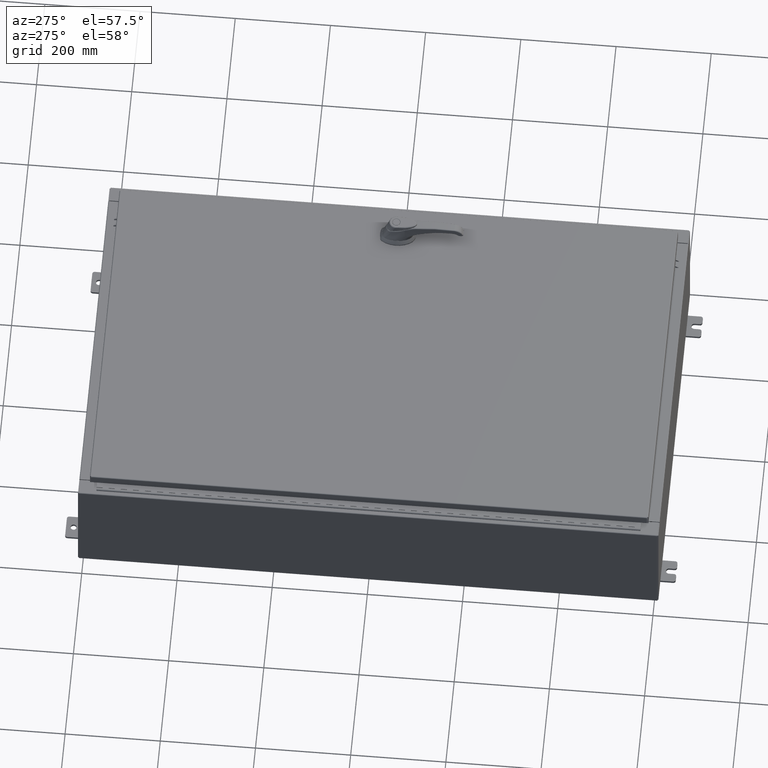
[diagram: clean part render]
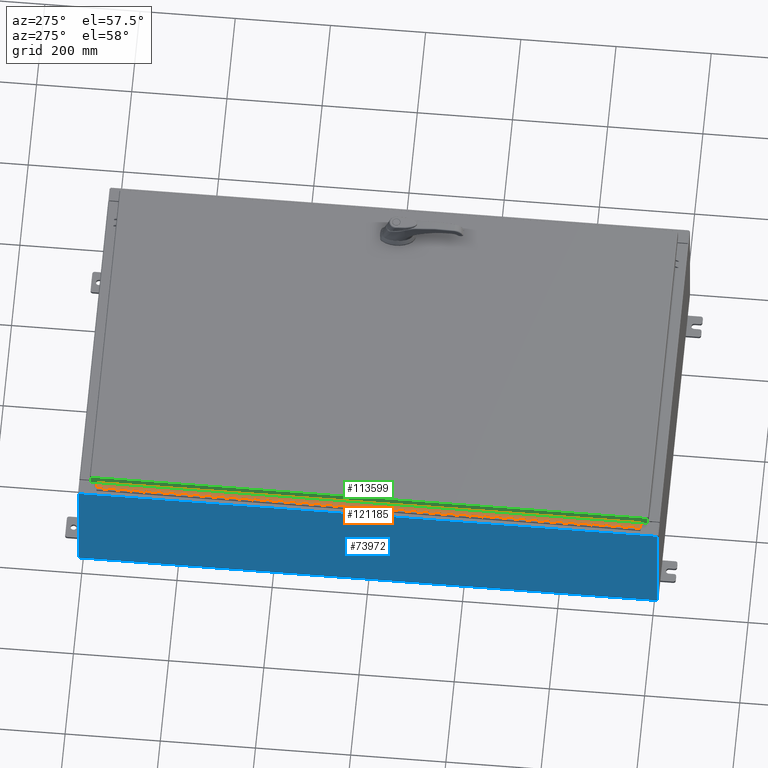
[diagram: same view with three faces highlighted in distinct colors, each labeled with its STEP entity id]
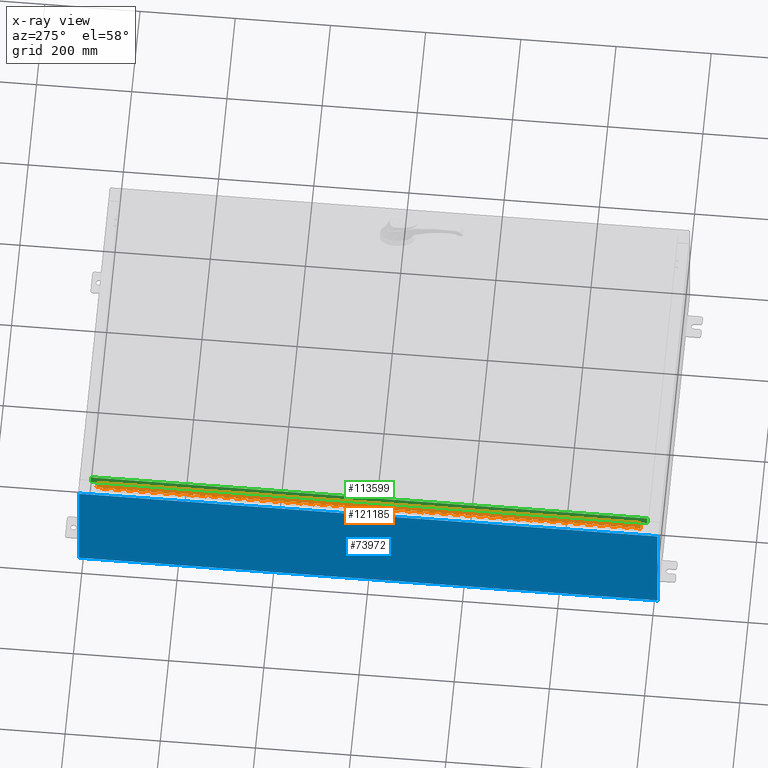
[diagram: x-ray of the same camera — body ghosted, the three highlighted faces saturated]
A machine part, auxiliary view with three faces highlighted in distinct colors.
The next image is the same camera in x-ray (body ghosted, the three faces saturated) — at least one of them is partly hidden behind the body in this view.
Their STEP definitions:

[orange] entity #121185 — the highlighted planar face has unit normal (-0, -0, 1).
#124 = CARTESIAN_POINT ( 'NONE',  ( -0.6869999999999978300, 0.6754999999999996600, -24.50000000000000000 ) ) ;
#339 = CARTESIAN_POINT ( 'NONE',  ( -0.6869999999999978300, 0.6754999999999996600, -45.00000000000000000 ) ) ;
#436 = DIRECTION ( 'NONE',  ( -3.389037039080723100E-015, -1.000000000000000000, 0.0000000000000000000 ) ) ;
#451 = EDGE_CURVE ( 'NONE', #67192, #107715, #25138, .T. ) ;
#452 = EDGE_CURVE ( 'NONE', #81519, #14521, #103904, .T. ) ;
#480 = EDGE_CURVE ( 'NONE', #79050, #2181, #15455, .T. ) ;
#830 = DIRECTION ( 'NONE',  ( 0.0000000000000000000, -0.0000000000000000000, -1.000000000000000000 ) ) ;
#990 = CARTESIAN_POINT ( 'NONE',  ( -0.6869999999999982800, 0.5504999999999997700, -21.50000000000000400 ) ) ;
#1038 = EDGE_CURVE ( 'NONE', #35937, #28986, #58678, .T. ) ;
#1095 = VERTEX_POINT ( 'NONE', #45919 ) ;
#1113 = VECTOR ( 'NONE', #57466, 39.37007874015748100 ) ;
#1271 = EDGE_CURVE ( 'NONE', #71662, #17368, #39361, .T. ) ;
#1284 = EDGE_CURVE ( 'NONE', #81627, #83655, #115033, .T. ) ;
#1350 = CARTESIAN_POINT ( 'NONE',  ( -0.6869999999999978300, 0.6754999999999996600, -45.00000000000000000 ) ) ;
#1385 = VERTEX_POINT ( 'NONE', #5290 ) ;
#1420 = VECTOR ( 'NONE', #76871, 39.37007874015748100 ) ;
#1586 = DIRECTION ( 'NONE',  ( 0.0000000000000000000, -0.0000000000000000000, -1.000000000000000000 ) ) ;
#1779 = ORIENTED_EDGE ( 'NONE', *, *, #8901, .F. ) ;
#1812 = EDGE_CURVE ( 'NONE', #98602, #117055, #110134, .T. ) ;
#1895 = ORIENTED_EDGE ( 'NONE', *, *, #110058, .F. ) ;
#2068 = CARTESIAN_POINT ( 'NONE',  ( -0.6869999999999978300, 0.6754999999999996600, -45.00000000000000000 ) ) ;
#2137 = LINE ( 'NONE', #73837, #53484 ) ;
#2165 = VECTOR ( 'NONE', #2511, 39.37007874015748100 ) ;
#2181 = VERTEX_POINT ( 'NONE', #121162 ) ;
#2430 = CARTESIAN_POINT ( 'NONE',  ( -0.6869999999999978300, 0.6754999999999996600, -21.00000000000000000 ) ) ;
#2511 = DIRECTION ( 'NONE',  ( 0.0000000000000000000, -0.0000000000000000000, -1.000000000000000000 ) ) ;
#2531 = VECTOR ( 'NONE', #42387, 39.37007874015748100 ) ;
#2634 = EDGE_CURVE ( 'NONE', #112956, #129257, #3911, .T. ) ;
#2814 = CARTESIAN_POINT ( 'NONE',  ( -0.6869999999999982800, 0.5504999999999997700, -22.50000000000000000 ) ) ;
#3032 = EDGE_CURVE ( 'NONE', #72097, #117832, #105080, .T. ) ;
#3036 = DIRECTION ( 'NONE',  ( 0.0000000000000000000, -0.0000000000000000000, -1.000000000000000000 ) ) ;
#3388 = DIRECTION ( 'NONE',  ( 3.369016658928398200E-015, 1.000000000000000000, 0.0000000000000000000 ) ) ;
#3565 = LINE ( 'NONE', #47881, #54887 ) ;
#3617 = VERTEX_POINT ( 'NONE', #90262 ) ;
#3696 = ORIENTED_EDGE ( 'NONE', *, *, #42831, .F. ) ;
#3740 = CARTESIAN_POINT ( 'NONE',  ( -0.6869999999999978300, 0.6754999999999996600, -19.50000000000000000 ) ) ;
#3911 = LINE ( 'NONE', #33975, #82611 ) ;
#4036 = CARTESIAN_POINT ( 'NONE',  ( -0.6869999999999978300, 0.6754999999999996600, -38.50000000000000000 ) ) ;
#4087 = DIRECTION ( 'NONE',  ( 0.0000000000000000000, 0.0000000000000000000, 1.000000000000000000 ) ) ;
#4119 = DIRECTION ( 'NONE',  ( -3.389037039080723100E-015, -1.000000000000000000, 0.0000000000000000000 ) ) ;
#4253 = VERTEX_POINT ( 'NONE', #56026 ) ;
#4393 = EDGE_CURVE ( 'NONE', #27845, #129257, #24517, .T. ) ;
#4396 = CARTESIAN_POINT ( 'NONE',  ( -0.6869999999999973900, 0.8004999999999995500, -41.49999999999999300 ) ) ;
#4486 = VERTEX_POINT ( 'NONE', #66463 ) ;
#4543 = DIRECTION ( 'NONE',  ( 0.0000000000000000000, -0.0000000000000000000, -1.000000000000000000 ) ) ;
#4622 = ORIENTED_EDGE ( 'NONE', *, *, #76094, .F. ) ;
#4859 = ORIENTED_EDGE ( 'NONE', *, *, #53338, .F. ) ;
#4913 = VECTOR ( 'NONE', #129399, 39.37007874015748100 ) ;
#4923 = CARTESIAN_POINT ( 'NONE',  ( -0.6869999999999978300, 0.6754999999999996600, -45.00000000000000000 ) ) ;
#5006 = CARTESIAN_POINT ( 'NONE',  ( -0.6869999999999978300, 0.6754999999999996600, -28.00000000000000000 ) ) ;
#5051 = VERTEX_POINT ( 'NONE', #85626 ) ;
#5159 = EDGE_CURVE ( 'NONE', #123807, #37883, #122527, .T. ) ;
#5244 = CARTESIAN_POINT ( 'NONE',  ( -0.6869999999999978300, 0.6754999999999996600, -23.00000000000000000 ) ) ;
#5290 = CARTESIAN_POINT ( 'NONE',  ( -0.6869999999999978300, 0.6754999999999996600, -32.50000000000000000 ) ) ;
#5297 = CARTESIAN_POINT ( 'NONE',  ( -0.6869999999999973900, 0.8004999999999995500, -21.50000000000000400 ) ) ;
#5299 = DIRECTION ( 'NONE',  ( 3.389037039080723100E-015, 1.000000000000000000, -0.0000000000000000000 ) ) ;
#5370 = EDGE_CURVE ( 'NONE', #123146, #71015, #93474, .T. ) ;
#5509 = DIRECTION ( 'NONE',  ( 3.389037039080723100E-015, 1.000000000000000000, -0.0000000000000000000 ) ) ;
#5536 = CARTESIAN_POINT ( 'NONE',  ( -0.6869999999999973900, 0.8004999999999995500, -29.50000000000000000 ) ) ;
#5646 = ORIENTED_EDGE ( 'NONE', *, *, #36298, .F. ) ;
#5720 = CARTESIAN_POINT ( 'NONE',  ( -0.6869999999999982800, 0.5504999999999997700, -31.50000000000000400 ) ) ;
#5740 = EDGE_CURVE ( 'NONE', #128265, #100676, #125650, .T. ) ;
#5778 = ORIENTED_EDGE ( 'NONE', *, *, #84039, .F. ) ;
#5809 = DIRECTION ( 'NONE',  ( 0.0000000000000000000, 0.0000000000000000000, 1.000000000000000000 ) ) ;
#5872 = VERTEX_POINT ( 'NONE', #6570 ) ;
#5971 = CARTESIAN_POINT ( 'NONE',  ( -0.6869999999999978300, 0.6754999999999996600, -32.00000000000000000 ) ) ;
#6285 = VECTOR ( 'NONE', #115312, 39.37007874015748100 ) ;
#6288 = CARTESIAN_POINT ( 'NONE',  ( -0.6869999999999973900, 0.8004999999999995500, -44.49999999999999300 ) ) ;
#6311 = VECTOR ( 'NONE', #109072, 39.37007874015748100 ) ;
#6361 = ORIENTED_EDGE ( 'NONE', *, *, #6739, .T. ) ;
#6427 = CARTESIAN_POINT ( 'NONE',  ( -0.6869999999999973900, 0.8004999999999995500, -17.00000000000000000 ) ) ;
#6439 = LINE ( 'NONE', #81145, #57764 ) ;
#6570 = CARTESIAN_POINT ( 'NONE',  ( -0.6869999999999982800, 0.5504999999999997700, -36.00000000000000000 ) ) ;
#6661 = DIRECTION ( 'NONE',  ( 0.0000000000000000000, -0.0000000000000000000, -1.000000000000000000 ) ) ;
#6731 = VECTOR ( 'NONE', #106020, 39.37007874015748100 ) ;
#6736 = DIRECTION ( 'NONE',  ( 0.0000000000000000000, 0.0000000000000000000, 1.000000000000000000 ) ) ;
#6739 = EDGE_CURVE ( 'NONE', #53266, #5051, #88442, .T. ) ;
#6767 = DIRECTION ( 'NONE',  ( 3.389037039080723100E-015, 1.000000000000000000, -0.0000000000000000000 ) ) ;
#7164 = VECTOR ( 'NONE', #116361, 39.37007874015748100 ) ;
#7311 = VERTEX_POINT ( 'NONE', #15982 ) ;
#7364 = VERTEX_POINT ( 'NONE', #33206 ) ;
#7463 = VERTEX_POINT ( 'NONE', #126025 ) ;
#7534 = CARTESIAN_POINT ( 'NONE',  ( -0.6869999999999973900, 0.8004999999999995500, -4.500000000000000000 ) ) ;
#7570 = CARTESIAN_POINT ( 'NONE',  ( -0.6869999999999978300, 0.6754999999999996600, -45.00000000000000000 ) ) ;
#7571 = VERTEX_POINT ( 'NONE', #119931 ) ;
#7649 = DIRECTION ( 'NONE',  ( 0.0000000000000000000, 0.0000000000000000000, 1.000000000000000000 ) ) ;
#7762 = DIRECTION ( 'NONE',  ( 3.389037039080723100E-015, 1.000000000000000000, -0.0000000000000000000 ) ) ;
#7846 = LINE ( 'NONE', #61575, #55955 ) ;
#7901 = EDGE_CURVE ( 'NONE', #43898, #125194, #62403, .T. ) ;
#8155 = VECTOR ( 'NONE', #109876, 39.37007874015748100 ) ;
#8270 = CARTESIAN_POINT ( 'NONE',  ( -0.6869999999999973900, 0.8004999999999995500, -2.999999999999999600 ) ) ;
#8277 = VERTEX_POINT ( 'NONE', #122039 ) ;
#8291 = DIRECTION ( 'NONE',  ( 0.0000000000000000000, -0.0000000000000000000, -1.000000000000000000 ) ) ;
#8514 = CARTESIAN_POINT ( 'NONE',  ( -0.6869999999999982800, 0.5504999999999997700, -30.50000000000000400 ) ) ;
#8573 = EDGE_CURVE ( 'NONE', #127178, #117616, #35023, .T. ) ;
#8602 = ORIENTED_EDGE ( 'NONE', *, *, #452, .F. ) ;
#8636 = VERTEX_POINT ( 'NONE', #39352 ) ;
#8797 = LINE ( 'NONE', #32974, #124619 ) ;
#8901 = EDGE_CURVE ( 'NONE', #28455, #87021, #39751, .T. ) ;
#9038 = CARTESIAN_POINT ( 'NONE',  ( -0.6869999999999982800, 0.5504999999999997700, -29.50000000000000000 ) ) ;
#9096 = ORIENTED_EDGE ( 'NONE', *, *, #104884, .F. ) ;
#9506 = ORIENTED_EDGE ( 'NONE', *, *, #113682, .F. ) ;
#9531 = EDGE_CURVE ( 'NONE', #108816, #17323, #70160, .T. ) ;
#9569 = CARTESIAN_POINT ( 'NONE',  ( -0.6869999999999973900, 0.8004999999999995500, -20.00000000000000000 ) ) ;
#9571 = LINE ( 'NONE', #30127, #112475 ) ;
#9606 = LINE ( 'NONE', #55425, #112515 ) ;
#9688 = DIRECTION ( 'NONE',  ( 0.0000000000000000000, 0.0000000000000000000, 1.000000000000000000 ) ) ;
#9736 = VERTEX_POINT ( 'NONE', #52612 ) ;
#9881 = CARTESIAN_POINT ( 'NONE',  ( -0.6869999999999978300, 0.6754999999999996600, -11.00000000000000000 ) ) ;
#9965 = VERTEX_POINT ( 'NONE', #47400 ) ;
#10061 = ORIENTED_EDGE ( 'NONE', *, *, #7901, .T. ) ;
#10163 = DIRECTION ( 'NONE',  ( -3.389037039080723100E-015, -1.000000000000000000, 0.0000000000000000000 ) ) ;
#10294 = EDGE_CURVE ( 'NONE', #83287, #90924, #49168, .T. ) ;
#10316 = LINE ( 'NONE', #37850, #85821 ) ;
#10352 = VECTOR ( 'NONE', #116085, 39.37007874015748100 ) ;
#10531 = DIRECTION ( 'NONE',  ( 3.389037039080723100E-015, 1.000000000000000000, -0.0000000000000000000 ) ) ;
#10552 = CARTESIAN_POINT ( 'NONE',  ( -0.6869999999999978300, 0.6754999999999996600, -37.00000000000000000 ) ) ;
#10733 = DIRECTION ( 'NONE',  ( 0.0000000000000000000, -0.0000000000000000000, -1.000000000000000000 ) ) ;
#10840 = VECTOR ( 'NONE', #132724, 39.37007874015748100 ) ;
#10951 = CARTESIAN_POINT ( 'NONE',  ( -0.6869999999999998300, 0.07549999999999991400, -45.00000000000000000 ) ) ;
#11293 = ORIENTED_EDGE ( 'NONE', *, *, #26971, .F. ) ;
#11381 = LINE ( 'NONE', #25921, #28979 ) ;
#11383 = VECTOR ( 'NONE', #79778, 39.37007874015748100 ) ;
#11690 = DIRECTION ( 'NONE',  ( 0.0000000000000000000, 0.0000000000000000000, 1.000000000000000000 ) ) ;
#11779 = ORIENTED_EDGE ( 'NONE', *, *, #90774, .F. ) ;
#11795 = CARTESIAN_POINT ( 'NONE',  ( -0.6870000000000022800, -0.6245000000000003900, 0.0000000000000000000 ) ) ;
#11906 = ORIENTED_EDGE ( 'NONE', *, *, #44438, .T. ) ;
#12164 = CARTESIAN_POINT ( 'NONE',  ( -0.6869999999999978300, 0.6754999999999996600, -28.50000000000000000 ) ) ;
#12217 = ORIENTED_EDGE ( 'NONE', *, *, #82445, .F. ) ;
#12267 = CARTESIAN_POINT ( 'NONE',  ( -0.6869999999999973900, 0.8004999999999995500, -44.00000000000000700 ) ) ;
#12363 = DIRECTION ( 'NONE',  ( 0.0000000000000000000, 0.0000000000000000000, 1.000000000000000000 ) ) ;
#12418 = CARTESIAN_POINT ( 'NONE',  ( -0.6869999999999973900, 0.8004999999999995500, -32.00000000000000000 ) ) ;
#12494 = DIRECTION ( 'NONE',  ( -3.389037039080723100E-015, -1.000000000000000000, 0.0000000000000000000 ) ) ;
#12570 = LINE ( 'NONE', #71936, #118702 ) ;
#12681 = VERTEX_POINT ( 'NONE', #61933 ) ;
#12778 = VECTOR ( 'NONE', #50344, 39.37007874015748100 ) ;
#12793 = CARTESIAN_POINT ( 'NONE',  ( -0.6869999999999982800, 0.5504999999999997700, -20.50000000000000400 ) ) ;
#12854 = EDGE_CURVE ( 'NONE', #4253, #32102, #128551, .T. ) ;
#12867 = VECTOR ( 'NONE', #60574, 39.37007874015748100 ) ;
#13028 = VECTOR ( 'NONE', #82812, 39.37007874015748100 ) ;
#13039 = DIRECTION ( 'NONE',  ( 0.0000000000000000000, -0.0000000000000000000, -1.000000000000000000 ) ) ;
#13194 = EDGE_CURVE ( 'NONE', #7571, #124862, #114232, .T. ) ;
#13245 = VERTEX_POINT ( 'NONE', #76395 ) ;
#13283 = CARTESIAN_POINT ( 'NONE',  ( -0.6869999999999982800, 0.5504999999999997700, -23.50000000000000000 ) ) ;
#13391 = VECTOR ( 'NONE', #96987, 39.37007874015748100 ) ;
#13581 = ORIENTED_EDGE ( 'NONE', *, *, #24975, .F. ) ;
#13735 = CARTESIAN_POINT ( 'NONE',  ( -0.6869999999999973900, 0.8004999999999995500, -9.500000000000000000 ) ) ;
#13969 = VERTEX_POINT ( 'NONE', #88971 ) ;
#14061 = LINE ( 'NONE', #9569, #10840 ) ;
#14077 = CARTESIAN_POINT ( 'NONE',  ( -0.6869999999999978300, 0.6754999999999996600, -45.00000000000000000 ) ) ;
#14175 = CARTESIAN_POINT ( 'NONE',  ( -0.6869999999999978300, 0.6754999999999996600, -9.500000000000000000 ) ) ;
#14208 = VERTEX_POINT ( 'NONE', #93840 ) ;
#14363 = DIRECTION ( 'NONE',  ( -3.389037039080723100E-015, -1.000000000000000000, 0.0000000000000000000 ) ) ;
#14388 = CARTESIAN_POINT ( 'NONE',  ( -0.6869999999999973900, 0.8004999999999995500, -20.50000000000000400 ) ) ;
#14521 = VERTEX_POINT ( 'NONE', #77535 ) ;
#14574 = EDGE_CURVE ( 'NONE', #34222, #57963, #120405, .T. ) ;
#14712 = VECTOR ( 'NONE', #68990, 39.37007874015748100 ) ;
#14934 = VECTOR ( 'NONE', #84650, 39.37007874015748100 ) ;
#15006 = EDGE_CURVE ( 'NONE', #109529, #117728, #36624, .T. ) ;
#15087 = DIRECTION ( 'NONE',  ( 0.0000000000000000000, 0.0000000000000000000, 1.000000000000000000 ) ) ;
#15096 = LINE ( 'NONE', #59230, #69637 ) ;
#15107 = DIRECTION ( 'NONE',  ( -3.389037039080723100E-015, -1.000000000000000000, 0.0000000000000000000 ) ) ;
#15233 = DIRECTION ( 'NONE',  ( 3.389037039080723100E-015, 1.000000000000000000, -0.0000000000000000000 ) ) ;
#15449 = VERTEX_POINT ( 'NONE', #131822 ) ;
#15455 = LINE ( 'NONE', #125627, #42698 ) ;
#15483 = LINE ( 'NONE', #55284, #124904 ) ;
#15579 = DIRECTION ( 'NONE',  ( 0.0000000000000000000, 0.0000000000000000000, 1.000000000000000000 ) ) ;
#15602 = VECTOR ( 'NONE', #46742, 39.37007874015748100 ) ;
#15667 = LINE ( 'NONE', #104575, #118611 ) ;
#15789 = VERTEX_POINT ( 'NONE', #131220 ) ;
#15807 = LINE ( 'NONE', #17503, #57497 ) ;
#15822 = CARTESIAN_POINT ( 'NONE',  ( -0.6869999999999978300, 0.6754999999999996600, -45.00000000000000000 ) ) ;
#15956 = VECTOR ( 'NONE', #44529, 39.37007874015748100 ) ;
#15982 = CARTESIAN_POINT ( 'NONE',  ( -0.6869999999999978300, 0.6754999999999996600, -23.50000000000000000 ) ) ;
#16123 = CARTESIAN_POINT ( 'NONE',  ( -0.6869999999999973900, 0.8004999999999995500, -17.50000000000000000 ) ) ;
#16383 = CARTESIAN_POINT ( 'NONE',  ( -0.6869999999999978300, 0.6754999999999996600, -35.50000000000000000 ) ) ;
#16555 = CARTESIAN_POINT ( 'NONE',  ( -0.6869999999999978300, 0.6754999999999996600, -25.50000000000000400 ) ) ;
#16583 = CARTESIAN_POINT ( 'NONE',  ( -0.6869999999999978300, 0.6754999999999996600, -14.99999999999999800 ) ) ;
#16627 = CARTESIAN_POINT ( 'NONE',  ( -0.6869999999999978300, 0.6754999999999996600, -44.49999999999999300 ) ) ;
#16664 = VERTEX_POINT ( 'NONE', #79120 ) ;
#16784 = VECTOR ( 'NONE', #92697, 39.37007874015748100 ) ;
#16943 = EDGE_CURVE ( 'NONE', #118803, #104022, #55573, .T. ) ;
#17037 = DIRECTION ( 'NONE',  ( -3.389037039080723100E-015, -1.000000000000000000, 0.0000000000000000000 ) ) ;
#17059 = CARTESIAN_POINT ( 'NONE',  ( -0.6869999999999973900, 0.8004999999999995500, -10.00000000000000000 ) ) ;
#17100 = CARTESIAN_POINT ( 'NONE',  ( -0.6869999999999982800, 0.5504999999999997700, -19.50000000000000000 ) ) ;
#17196 = CARTESIAN_POINT ( 'NONE',  ( -0.6869999999999982800, 0.5504999999999997700, -5.000000000000000000 ) ) ;
#17237 = ORIENTED_EDGE ( 'NONE', *, *, #106933, .F. ) ;
#17323 = VERTEX_POINT ( 'NONE', #105010 ) ;
#17368 = VERTEX_POINT ( 'NONE', #96036 ) ;
#17410 = DIRECTION ( 'NONE',  ( -3.389037039080723100E-015, -1.000000000000000000, 0.0000000000000000000 ) ) ;
#17503 = CARTESIAN_POINT ( 'NONE',  ( -0.6869999999999978300, 0.6754999999999996600, -45.00000000000000000 ) ) ;
#17655 = CARTESIAN_POINT ( 'NONE',  ( -0.6869999999999978300, 0.6754999999999996600, -27.00000000000000000 ) ) ;
#17822 = ORIENTED_EDGE ( 'NONE', *, *, #63439, .F. ) ;
#17827 = DIRECTION ( 'NONE',  ( -3.389037039080723100E-015, -1.000000000000000000, 0.0000000000000000000 ) ) ;
#18167 = CARTESIAN_POINT ( 'NONE',  ( -0.6869999999999982800, 0.5504999999999997700, -10.50000000000000000 ) ) ;
#18258 = CARTESIAN_POINT ( 'NONE',  ( -0.6869999999999978300, 0.6754999999999996600, -45.00000000000000000 ) ) ;
#18305 = CARTESIAN_POINT ( 'NONE',  ( -0.6869999999999973900, 0.8004999999999995500, -5.000000000000000000 ) ) ;
#18365 = CARTESIAN_POINT ( 'NONE',  ( -0.6869999999999982800, 0.5504999999999997700, -35.50000000000000000 ) ) ;
#18446 = VERTEX_POINT ( 'NONE', #53449 ) ;
#18497 = VECTOR ( 'NONE', #4119, 39.37007874015748100 ) ;
#18572 = DIRECTION ( 'NONE',  ( 3.389037039080723100E-015, 1.000000000000000000, -0.0000000000000000000 ) ) ;
#18585 = CARTESIAN_POINT ( 'NONE',  ( -0.6869999999999982800, 0.5504999999999997700, -43.50000000000000000 ) ) ;
#18769 = DIRECTION ( 'NONE',  ( 3.389037039080723100E-015, 1.000000000000000000, -0.0000000000000000000 ) ) ;
#18908 = EDGE_CURVE ( 'NONE', #109846, #39050, #111658, .T. ) ;
#18948 = CARTESIAN_POINT ( 'NONE',  ( -0.6869999999999973900, 0.8004999999999995500, -21.00000000000000000 ) ) ;
#19021 = VERTEX_POINT ( 'NONE', #103005 ) ;
#19210 = LINE ( 'NONE', #91280, #12778 ) ;
#19272 = CARTESIAN_POINT ( 'NONE',  ( -0.6869999999999973900, 0.8004999999999995500, -31.50000000000000400 ) ) ;
#19438 = CARTESIAN_POINT ( 'NONE',  ( -0.6869999999999982800, 0.5504999999999997700, -16.50000000000000000 ) ) ;
#19507 = EDGE_CURVE ( 'NONE', #81241, #4486, #21514, .T. ) ;
#19844 = LINE ( 'NONE', #126331, #126023 ) ;
#19926 = CARTESIAN_POINT ( 'NONE',  ( -0.6869999999999973900, 0.8004999999999995500, -28.99999999999999600 ) ) ;
#20051 = LINE ( 'NONE', #107739, #68183 ) ;
#20289 = EDGE_CURVE ( 'NONE', #92756, #85527, #21367, .T. ) ;
#20501 = CARTESIAN_POINT ( 'NONE',  ( -0.6869999999999982800, 0.5504999999999997700, -28.00000000000000000 ) ) ;
#20785 = VERTEX_POINT ( 'NONE', #116965 ) ;
#20837 = ORIENTED_EDGE ( 'NONE', *, *, #132734, .T. ) ;
#20859 = ORIENTED_EDGE ( 'NONE', *, *, #106142, .F. ) ;
#21066 = VERTEX_POINT ( 'NONE', #9038 ) ;
#21137 = ORIENTED_EDGE ( 'NONE', *, *, #24791, .F. ) ;
#21298 = VERTEX_POINT ( 'NONE', #84859 ) ;
#21308 = DIRECTION ( 'NONE',  ( 1.000000000000000000, -3.369016658928398200E-015, 0.0000000000000000000 ) ) ;
#21362 = ORIENTED_EDGE ( 'NONE', *, *, #480, .T. ) ;
#21366 = LINE ( 'NONE', #122950, #69479 ) ;
#21367 = LINE ( 'NONE', #22280, #72716 ) ;
#21394 = ORIENTED_EDGE ( 'NONE', *, *, #53689, .T. ) ;
#21427 = ORIENTED_EDGE ( 'NONE', *, *, #122709, .F. ) ;
#21514 = LINE ( 'NONE', #111886, #100296 ) ;
#21520 = EDGE_CURVE ( 'NONE', #128619, #34278, #64440, .T. ) ;
#21543 = CARTESIAN_POINT ( 'NONE',  ( -0.6869999999999973900, 0.8004999999999995500, -2.500000000000000000 ) ) ;
#21757 = CARTESIAN_POINT ( 'NONE',  ( -0.6869999999999978300, 0.6754999999999996600, -6.499999999999999100 ) ) ;
#21784 = CARTESIAN_POINT ( 'NONE',  ( -0.6869999999999973900, 0.8004999999999995500, -28.50000000000000000 ) ) ;
#21874 = VERTEX_POINT ( 'NONE', #110609 ) ;
#21909 = VECTOR ( 'NONE', #80540, 39.37007874015748100 ) ;
#22029 = CARTESIAN_POINT ( 'NONE',  ( -0.6869999999999982800, 0.5504999999999997700, -16.50000000000000000 ) ) ;
#22213 = EDGE_CURVE ( 'NONE', #72097, #20785, #49035, .T. ) ;
#22280 = CARTESIAN_POINT ( 'NONE',  ( -0.6869999999999973900, 0.8004999999999995500, -28.00000000000000000 ) ) ;
#22391 = EDGE_CURVE ( 'NONE', #111762, #5051, #115046, .T. ) ;
#22559 = DIRECTION ( 'NONE',  ( 3.389037039080723100E-015, 1.000000000000000000, -0.0000000000000000000 ) ) ;
#22582 = ORIENTED_EDGE ( 'NONE', *, *, #63472, .F. ) ;
#22662 = CARTESIAN_POINT ( 'NONE',  ( -0.6869999999999973900, 0.8004999999999995500, -26.50000000000000400 ) ) ;
#22671 = VERTEX_POINT ( 'NONE', #42752 ) ;
#22963 = CARTESIAN_POINT ( 'NONE',  ( -0.6869999999999978300, 0.6754999999999996600, -15.50000000000000000 ) ) ;
#22964 = VECTOR ( 'NONE', #15233, 39.37007874015748100 ) ;
#22988 = VECTOR ( 'NONE', #95062, 39.37007874015748100 ) ;
#23279 = CARTESIAN_POINT ( 'NONE',  ( -0.6869999999999978300, 0.6754999999999996600, -31.00000000000000000 ) ) ;
#23360 = CARTESIAN_POINT ( 'NONE',  ( -0.6869999999999982800, 0.5504999999999997700, -15.50000000000000000 ) ) ;
#23396 = CARTESIAN_POINT ( 'NONE',  ( -0.6869999999999973900, 0.8004999999999995500, -36.00000000000000000 ) ) ;
#23575 = CARTESIAN_POINT ( 'NONE',  ( -0.6869999999999978300, 0.6754999999999996600, -11.50000000000000000 ) ) ;
#23824 = EDGE_CURVE ( 'NONE', #100033, #131383, #48798, .T. ) ;
#23841 = CARTESIAN_POINT ( 'NONE',  ( -0.6869999999999982800, 0.5504999999999997700, -17.00000000000000000 ) ) ;
#23898 = CARTESIAN_POINT ( 'NONE',  ( -0.6869999999999982800, 0.5504999999999997700, -37.00000000000000000 ) ) ;
#23966 = LINE ( 'NONE', #5297, #75333 ) ;
#24077 = DIRECTION ( 'NONE',  ( -3.389037039080723100E-015, -1.000000000000000000, 0.0000000000000000000 ) ) ;
#24100 = VERTEX_POINT ( 'NONE', #5244 ) ;
#24447 = CARTESIAN_POINT ( 'NONE',  ( -0.6869999999999973900, 0.8004999999999995500, -39.49999999999999300 ) ) ;
#24517 = LINE ( 'NONE', #339, #79097 ) ;
#24546 = CARTESIAN_POINT ( 'NONE',  ( -0.6869999999999982800, 0.5504999999999997700, -23.00000000000000000 ) ) ;
#24664 = VERTEX_POINT ( 'NONE', #12164 ) ;
#24791 = EDGE_CURVE ( 'NONE', #18446, #15789, #35807, .T. ) ;
#24975 = EDGE_CURVE ( 'NONE', #120760, #117832, #50236, .T. ) ;
#25138 = LINE ( 'NONE', #63919, #76500 ) ;
#25207 = VECTOR ( 'NONE', #82100, 39.37007874015748100 ) ;
#25292 = VECTOR ( 'NONE', #24077, 39.37007874015748100 ) ;
#25445 = EDGE_CURVE ( 'NONE', #16664, #75372, #69400, .T. ) ;
#25921 = CARTESIAN_POINT ( 'NONE',  ( -0.6869999999999973900, 0.8004999999999995500, -42.00000000000000000 ) ) ;
#26033 = EDGE_CURVE ( 'NONE', #64004, #43205, #27584, .T. ) ;
#26191 = VERTEX_POINT ( 'NONE', #92213 ) ;
#26239 = ORIENTED_EDGE ( 'NONE', *, *, #57376, .F. ) ;
#26331 = ORIENTED_EDGE ( 'NONE', *, *, #39650, .F. ) ;
#26565 = CARTESIAN_POINT ( 'NONE',  ( -0.6869999999999973900, 0.8004999999999995500, -38.00000000000000000 ) ) ;
#26649 = ORIENTED_EDGE ( 'NONE', *, *, #60947, .F. ) ;
#26740 = CARTESIAN_POINT ( 'NONE',  ( -0.6869999999999982800, 0.5504999999999997700, -17.50000000000000000 ) ) ;
#26846 = VECTOR ( 'NONE', #55637, 39.37007874015748100 ) ;
#26971 = EDGE_CURVE ( 'NONE', #113897, #5872, #96640, .T. ) ;
#27122 = ORIENTED_EDGE ( 'NONE', *, *, #46349, .F. ) ;
#27156 = EDGE_CURVE ( 'NONE', #105573, #107395, #131993, .T. ) ;
#27226 = LINE ( 'NONE', #84206, #54484 ) ;
#27584 = LINE ( 'NONE', #120156, #130580 ) ;
#27845 = VERTEX_POINT ( 'NONE', #50100 ) ;
#28358 = VECTOR ( 'NONE', #105214, 39.37007874015748100 ) ;
#28366 = LINE ( 'NONE', #26565, #1113 ) ;
#28443 = CARTESIAN_POINT ( 'NONE',  ( -0.6869999999999982800, 0.5504999999999997700, -3.500000000000000000 ) ) ;
#28455 = VERTEX_POINT ( 'NONE', #80972 ) ;
#28469 = LINE ( 'NONE', #13735, #25292 ) ;
#28703 = CARTESIAN_POINT ( 'NONE',  ( -0.6869999999999982800, 0.5504999999999997700, -44.49999999999999300 ) ) ;
#28707 = VECTOR ( 'NONE', #84468, 39.37007874015748100 ) ;
#28755 = LINE ( 'NONE', #40328, #83439 ) ;
#28787 = CARTESIAN_POINT ( 'NONE',  ( -0.6869999999999982800, 0.5504999999999997700, -25.50000000000000400 ) ) ;
#28817 = CARTESIAN_POINT ( 'NONE',  ( -0.6869999999999978300, 0.6754999999999996600, -20.50000000000000400 ) ) ;
#28977 = ORIENTED_EDGE ( 'NONE', *, *, #100335, .F. ) ;
#28979 = VECTOR ( 'NONE', #5299, 39.37007874015748100 ) ;
#28986 = VERTEX_POINT ( 'NONE', #132204 ) ;
#29142 = CARTESIAN_POINT ( 'NONE',  ( -0.6869999999999982800, 0.5504999999999997700, -44.49999999999999300 ) ) ;
#29424 = CARTESIAN_POINT ( 'NONE',  ( -0.6869999999999978300, 0.6754999999999996600, -29.99999999999999600 ) ) ;
#29431 = LINE ( 'NONE', #84675, #2165 ) ;
#29593 = VECTOR ( 'NONE', #95527, 39.37007874015748100 ) ;
#30077 = LINE ( 'NONE', #64446, #84762 ) ;
#30081 = EDGE_CURVE ( 'NONE', #100306, #127826, #28469, .T. ) ;
#30094 = EDGE_CURVE ( 'NONE', #47927, #74381, #110539, .T. ) ;
#30127 = CARTESIAN_POINT ( 'NONE',  ( -0.6869999999999982800, 0.5504999999999997700, -40.50000000000000000 ) ) ;
#30272 = EDGE_CURVE ( 'NONE', #7364, #12681, #118559, .T. ) ;
#30467 = DIRECTION ( 'NONE',  ( 0.0000000000000000000, 0.0000000000000000000, 1.000000000000000000 ) ) ;
#30502 = CARTESIAN_POINT ( 'NONE',  ( -0.6869999999999973900, 0.8004999999999995500, -40.50000000000000000 ) ) ;
#30628 = VECTOR ( 'NONE', #54119, 39.37007874015748100 ) ;
#30730 = CARTESIAN_POINT ( 'NONE',  ( -0.6869999999999978300, 0.6754999999999996600, -45.00000000000000000 ) ) ;
#30910 = DIRECTION ( 'NONE',  ( 0.0000000000000000000, 0.0000000000000000000, 1.000000000000000000 ) ) ;
#31385 = VECTOR ( 'NONE', #97808, 39.37007874015748100 ) ;
#31415 = EDGE_CURVE ( 'NONE', #37506, #64847, #68410, .T. ) ;
#31610 = CARTESIAN_POINT ( 'NONE',  ( -0.6869999999999982800, 0.5504999999999997700, -45.00000000000000000 ) ) ;
#31688 = VECTOR ( 'NONE', #100405, 39.37007874015748100 ) ;
#31730 = VERTEX_POINT ( 'NONE', #111831 ) ;
#31793 = EDGE_CURVE ( 'NONE', #7311, #24100, #42604, .T. ) ;
#31794 = DIRECTION ( 'NONE',  ( -3.389037039080723100E-015, -1.000000000000000000, 0.0000000000000000000 ) ) ;
#31821 = LINE ( 'NONE', #88514, #46279 ) ;
#31959 = ORIENTED_EDGE ( 'NONE', *, *, #92137, .F. ) ;
#31987 = ORIENTED_EDGE ( 'NONE', *, *, #26033, .T. ) ;
#31998 = VERTEX_POINT ( 'NONE', #84318 ) ;
#32073 = DIRECTION ( 'NONE',  ( -3.389037039080723100E-015, -1.000000000000000000, 0.0000000000000000000 ) ) ;
#32102 = VERTEX_POINT ( 'NONE', #107250 ) ;
#32159 = EDGE_CURVE ( 'NONE', #53259, #50281, #102152, .T. ) ;
#32196 = DIRECTION ( 'NONE',  ( -3.389037039080723100E-015, -1.000000000000000000, 0.0000000000000000000 ) ) ;
#32383 = CARTESIAN_POINT ( 'NONE',  ( -0.6869999999999982800, 0.5504999999999997700, -18.50000000000000000 ) ) ;
#32447 = CARTESIAN_POINT ( 'NONE',  ( -0.6869999999999973900, 0.8004999999999995500, -8.500000000000000000 ) ) ;
#32636 = DIRECTION ( 'NONE',  ( 0.0000000000000000000, -0.0000000000000000000, -1.000000000000000000 ) ) ;
#32688 = VERTEX_POINT ( 'NONE', #2430 ) ;
#32742 = LINE ( 'NONE', #44960, #108398 ) ;
#32821 = EDGE_CURVE ( 'NONE', #42142, #17368, #70496, .T. ) ;
#32974 = CARTESIAN_POINT ( 'NONE',  ( -0.6869999999999973900, 0.8004999999999995500, -22.00000000000000000 ) ) ;
#32994 = CARTESIAN_POINT ( 'NONE',  ( -0.6869999999999982800, 0.5504999999999997700, -39.49999999999999300 ) ) ;
#33023 = VECTOR ( 'NONE', #40393, 39.37007874015748100 ) ;
#33088 = CARTESIAN_POINT ( 'NONE',  ( -0.6869999999999973900, 0.8004999999999995500, -2.000000000000000000 ) ) ;
#33206 = CARTESIAN_POINT ( 'NONE',  ( -0.6869999999999982800, 0.5504999999999997700, -14.00000000000000000 ) ) ;
#33291 = DIRECTION ( 'NONE',  ( 0.0000000000000000000, -0.0000000000000000000, -1.000000000000000000 ) ) ;
#33307 = VECTOR ( 'NONE', #46722, 39.37007874015748100 ) ;
#33327 = ORIENTED_EDGE ( 'NONE', *, *, #1271, .F. ) ;
#33386 = ORIENTED_EDGE ( 'NONE', *, *, #10294, .T. ) ;
#33400 = EDGE_CURVE ( 'NONE', #7311, #109846, #86595, .T. ) ;
#33474 = EDGE_CURVE ( 'NONE', #101268, #12681, #52765, .T. ) ;
#33577 = LINE ( 'NONE', #129359, #6311 ) ;
#33684 = DIRECTION ( 'NONE',  ( 3.389037039080723100E-015, 1.000000000000000000, -0.0000000000000000000 ) ) ;
#33777 = CARTESIAN_POINT ( 'NONE',  ( -0.6869999999999973900, 0.8004999999999995500, -42.50000000000000000 ) ) ;
#33858 = EDGE_CURVE ( 'NONE', #7571, #36070, #15807, .T. ) ;
#33899 = LINE ( 'NONE', #115583, #109530 ) ;
#33975 = CARTESIAN_POINT ( 'NONE',  ( -0.6869999999999973900, 0.8004999999999995500, -43.00000000000000700 ) ) ;
#34005 = EDGE_CURVE ( 'NONE', #87440, #7364, #78405, .T. ) ;
#34076 = VERTEX_POINT ( 'NONE', #83014 ) ;
#34222 = VERTEX_POINT ( 'NONE', #104602 ) ;
#34245 = CARTESIAN_POINT ( 'NONE',  ( -0.6869999999999978300, 0.6754999999999996600, -45.00000000000000000 ) ) ;
#34278 = VERTEX_POINT ( 'NONE', #116318 ) ;
#34299 = CARTESIAN_POINT ( 'NONE',  ( -0.6869999999999982800, 0.5504999999999997700, -39.00000000000000000 ) ) ;
#34438 = EDGE_CURVE ( 'NONE', #44877, #131102, #23966, .T. ) ;
#34596 = ORIENTED_EDGE ( 'NONE', *, *, #32821, .T. ) ;
#34661 = EDGE_CURVE ( 'NONE', #76409, #60188, #114008, .T. ) ;
#35023 = LINE ( 'NONE', #47089, #113883 ) ;
#35119 = DIRECTION ( 'NONE',  ( -3.389037039080723100E-015, -1.000000000000000000, 0.0000000000000000000 ) ) ;
#35120 = DIRECTION ( 'NONE',  ( 0.0000000000000000000, -0.0000000000000000000, -1.000000000000000000 ) ) ;
#35443 = ORIENTED_EDGE ( 'NONE', *, *, #86056, .T. ) ;
#35807 = LINE ( 'NONE', #23360, #87299 ) ;
#35937 = VERTEX_POINT ( 'NONE', #75610 ) ;
#36070 = VERTEX_POINT ( 'NONE', #17655 ) ;
#36156 = VECTOR ( 'NONE', #119109, 39.37007874015748100 ) ;
#36191 = EDGE_CURVE ( 'NONE', #21874, #40630, #14061, .T. ) ;
#36195 = EDGE_CURVE ( 'NONE', #8277, #28455, #96092, .T. ) ;
#36298 = EDGE_CURVE ( 'NONE', #83584, #9736, #86361, .T. ) ;
#36344 = VERTEX_POINT ( 'NONE', #86293 ) ;
#36386 = CARTESIAN_POINT ( 'NONE',  ( -0.6869999999999973900, 0.8004999999999995500, -12.99999999999999800 ) ) ;
#36462 = LINE ( 'NONE', #18948, #60535 ) ;
#36524 = DIRECTION ( 'NONE',  ( 0.0000000000000000000, -0.0000000000000000000, -1.000000000000000000 ) ) ;
#36624 = LINE ( 'NONE', #95032, #60679 ) ;
#36647 = CARTESIAN_POINT ( 'NONE',  ( -0.6869999999999978300, 0.6754999999999996600, -29.50000000000000000 ) ) ;
#37021 = VERTEX_POINT ( 'NONE', #113540 ) ;
#37237 = VECTOR ( 'NONE', #94710, 39.37007874015748100 ) ;
#37329 = CARTESIAN_POINT ( 'NONE',  ( -0.6869999999999978300, 0.6754999999999996600, -22.50000000000000000 ) ) ;
#37506 = VERTEX_POINT ( 'NONE', #28817 ) ;
#37617 = LINE ( 'NONE', #95679, #7164 ) ;
#37850 = CARTESIAN_POINT ( 'NONE',  ( -0.6869999999999973900, 0.8004999999999995500, -24.99999999999999600 ) ) ;
#37851 = VECTOR ( 'NONE', #127264, 39.37007874015748100 ) ;
#37862 = VECTOR ( 'NONE', #94559, 39.37007874015748100 ) ;
#37868 = CARTESIAN_POINT ( 'NONE',  ( -0.6869999999999982800, 0.5504999999999997700, -26.50000000000000400 ) ) ;
#37883 = VERTEX_POINT ( 'NONE', #116463 ) ;
#37953 = DIRECTION ( 'NONE',  ( 3.389037039080723100E-015, 1.000000000000000000, -0.0000000000000000000 ) ) ;
#38038 = LINE ( 'NONE', #69756, #86331 ) ;
#38145 = LINE ( 'NONE', #18585, #110558 ) ;
#38363 = DIRECTION ( 'NONE',  ( -3.389037039080723100E-015, -1.000000000000000000, 0.0000000000000000000 ) ) ;
#38465 = VECTOR ( 'NONE', #18572, 39.37007874015748100 ) ;
#38611 = VECTOR ( 'NONE', #6661, 39.37007874015748100 ) ;
#38773 = LINE ( 'NONE', #49574, #117665 ) ;
#38876 = VECTOR ( 'NONE', #123885, 39.37007874015748100 ) ;
#38883 = ORIENTED_EDGE ( 'NONE', *, *, #32159, .F. ) ;
#38910 = EDGE_CURVE ( 'NONE', #88494, #3617, #8797, .T. ) ;
#38934 = CARTESIAN_POINT ( 'NONE',  ( -0.6869999999999973900, 0.8004999999999995500, -26.00000000000000000 ) ) ;
#39016 = CARTESIAN_POINT ( 'NONE',  ( -0.6869999999999978300, 0.6754999999999996600, -2.500000000000000000 ) ) ;
#39050 = VERTEX_POINT ( 'NONE', #89406 ) ;
#39272 = EDGE_CURVE ( 'NONE', #49349, #122283, #92316, .T. ) ;
#39352 = CARTESIAN_POINT ( 'NONE',  ( -0.6869999999999982800, 0.5504999999999997700, -17.99999999999999600 ) ) ;
#39361 = LINE ( 'NONE', #6427, #36156 ) ;
#39376 = VECTOR ( 'NONE', #100570, 39.37007874015748100 ) ;
#39650 = EDGE_CURVE ( 'NONE', #15789, #54016, #15096, .T. ) ;
#39751 = LINE ( 'NONE', #105113, #115434 ) ;
#39799 = EDGE_CURVE ( 'NONE', #1095, #71005, #90642, .T. ) ;
#39895 = EDGE_CURVE ( 'NONE', #59027, #13969, #129292, .T. ) ;
#40045 = VECTOR ( 'NONE', #92345, 39.37007874015748100 ) ;
#40064 = VECTOR ( 'NONE', #4543, 39.37007874015748100 ) ;
#40083 = CARTESIAN_POINT ( 'NONE',  ( -0.6869999999999973900, 0.8004999999999995500, -27.50000000000000000 ) ) ;
#40097 = LINE ( 'NONE', #101613, #12867 ) ;
#40131 = CARTESIAN_POINT ( 'NONE',  ( -0.6869999999999982800, 0.5504999999999997700, -0.5000000000000000000 ) ) ;
#40188 = VECTOR ( 'NONE', #60044, 39.37007874015748100 ) ;
#40201 = VECTOR ( 'NONE', #5809, 39.37007874015748100 ) ;
#40299 = EDGE_CURVE ( 'NONE', #131102, #88494, #48661, .T. ) ;
#40328 = CARTESIAN_POINT ( 'NONE',  ( -0.6869999999999982800, 0.5504999999999997700, -31.50000000000000400 ) ) ;
#40368 = DIRECTION ( 'NONE',  ( 0.0000000000000000000, -0.0000000000000000000, -1.000000000000000000 ) ) ;
#40369 = VECTOR ( 'NONE', #76164, 39.37007874015748100 ) ;
#40393 = DIRECTION ( 'NONE',  ( 0.0000000000000000000, -0.0000000000000000000, -1.000000000000000000 ) ) ;
#40505 = DIRECTION ( 'NONE',  ( 0.0000000000000000000, -0.0000000000000000000, -1.000000000000000000 ) ) ;
#40553 = VECTOR ( 'NONE', #120749, 39.37007874015748100 ) ;
#40594 = CARTESIAN_POINT ( 'NONE',  ( -0.6869999999999978300, 0.6754999999999996600, -45.00000000000000000 ) ) ;
#40630 = VERTEX_POINT ( 'NONE', #106824 ) ;
#40814 = EDGE_LOOP ( 'NONE', ( #109668, #125728, #80577, #49369, #75249, #125727, #85936, #21427, #96552, #53203, #93860, #95088, #73541, #3696, #69320, #122681, #57120, #74447, #114421, #68920, #102326, #48676, #130590, #102409, #20837, #73572, #61138, #124018, #61977, #94805, #89046, #38883, #127065, #77799, #111210, #118811, #35443, #119917, #11293, #131092, #63362, #86447, #1779, #112537, #86943, #8602, #49846, #72572, #50525, #116916, #48666, #79464, #111624, #83863, #31959, #96980, #102935, #67266, #114194, #67013, #11906, #79298, #99676, #124252, #65865, #100554, #97348, #11779, #55093, #91945, #94078, #125601, #45522, #54688, #117959, #67554, #6361, #69450, #4859, #9096, #10061, #26239, #118037, #116699, #77910, #17237, #85665, #62331, #80201, #75603, #105655, #79181, #112453, #129285, #133065, #60447, #129995, #116951, #79534, #113695, #125559, #76590, #22582, #101566, #80723, #13581, #41720, #81188, #59442, #65154, #27122, #90675, #34596, #33327, #94017, #26649, #55091, #26331, #21137, #127572, #66133, #54994, #101250, #45840, #124587, #84249, #84967, #9506, #72667, #17822, #118333, #28977, #31987, #95804, #45139, #127447, #119135, #88286, #128106, #69996, #125994, #61317, #112618, #57183, #128168, #58771, #125945, #92139, #74175, #76424, #90406, #64708, #132241, #20859, #68844, #65564, #72159, #82686, #4622, #88249, #111878, #42731, #55657, #69862, #46684, #46931, #96309, #129868, #21394, #56678, #1895, #62509, #114345, #5778, #5646, #12217, #21362, #113446, #126736, #122804, #33386, #120932 ) ) ;
#40860 = VECTOR ( 'NONE', #68986, 39.37007874015748100 ) ;
#40999 = DIRECTION ( 'NONE',  ( 0.0000000000000000000, 0.0000000000000000000, 1.000000000000000000 ) ) ;
#41179 = CARTESIAN_POINT ( 'NONE',  ( -0.6869999999999973900, 0.8004999999999995500, -32.50000000000000000 ) ) ;
#41225 = EDGE_CURVE ( 'NONE', #128265, #17323, #117768, .T. ) ;
#41311 = VECTOR ( 'NONE', #11690, 39.37007874015748100 ) ;
#41438 = DIRECTION ( 'NONE',  ( 0.0000000000000000000, 0.0000000000000000000, 1.000000000000000000 ) ) ;
#41478 = CARTESIAN_POINT ( 'NONE',  ( -0.6870000000000022800, -0.6245000000000003900, -45.00000000000000000 ) ) ;
#41685 = DIRECTION ( 'NONE',  ( 0.0000000000000000000, -0.0000000000000000000, -1.000000000000000000 ) ) ;
#41720 = ORIENTED_EDGE ( 'NONE', *, *, #116922, .F. ) ;
#41736 = DIRECTION ( 'NONE',  ( -3.389037039080723100E-015, -1.000000000000000000, 0.0000000000000000000 ) ) ;
#41878 = CARTESIAN_POINT ( 'NONE',  ( -0.6869999999999978300, 0.6754999999999996600, -45.00000000000000000 ) ) ;
#42000 = DIRECTION ( 'NONE',  ( -3.389037039080723100E-015, -1.000000000000000000, 0.0000000000000000000 ) ) ;
#42142 = VERTEX_POINT ( 'NONE', #95354 ) ;
#42336 = CARTESIAN_POINT ( 'NONE',  ( -0.6869999999999978300, 0.6754999999999996600, -16.00000000000000000 ) ) ;
#42372 = VERTEX_POINT ( 'NONE', #16627 ) ;
#42374 = CARTESIAN_POINT ( 'NONE',  ( -0.6869999999999978300, 0.6754999999999996600, -42.00000000000000000 ) ) ;
#42387 = DIRECTION ( 'NONE',  ( -3.389037039080723100E-015, -1.000000000000000000, 0.0000000000000000000 ) ) ;
#42490 = FACE_OUTER_BOUND ( 'NONE', #40814, .T. ) ;
#42604 = LINE ( 'NONE', #101917, #128035 ) ;
#42671 = EDGE_CURVE ( 'NONE', #68911, #123921, #93375, .T. ) ;
#42684 = VERTEX_POINT ( 'NONE', #127143 ) ;
#42698 = VECTOR ( 'NONE', #7649, 39.37007874015748100 ) ;
#42724 = DIRECTION ( 'NONE',  ( 0.0000000000000000000, 0.0000000000000000000, 1.000000000000000000 ) ) ;
#42728 = CARTESIAN_POINT ( 'NONE',  ( -0.6869999999999978300, 0.6754999999999996600, -45.00000000000000000 ) ) ;
#42731 = ORIENTED_EDGE ( 'NONE', *, *, #9531, .F. ) ;
#42752 = CARTESIAN_POINT ( 'NONE',  ( -0.6869999999999978300, 0.6754999999999996600, -9.000000000000000000 ) ) ;
#42770 = EDGE_CURVE ( 'NONE', #55130, #127128, #45087, .T. ) ;
#42771 = CARTESIAN_POINT ( 'NONE',  ( -0.6869999999999982800, 0.5504999999999997700, -7.499999999999999100 ) ) ;
#42831 = EDGE_CURVE ( 'NONE', #74381, #67753, #11381, .T. ) ;
#43162 = CARTESIAN_POINT ( 'NONE',  ( -0.6869999999999978300, 0.6754999999999996600, -45.00000000000000000 ) ) ;
#43205 = VERTEX_POINT ( 'NONE', #91447 ) ;
#43293 = LINE ( 'NONE', #55654, #40064 ) ;
#43331 = DIRECTION ( 'NONE',  ( 3.389037039080723100E-015, 1.000000000000000000, -0.0000000000000000000 ) ) ;
#43608 = VERTEX_POINT ( 'NONE', #95818 ) ;
#43657 = VECTOR ( 'NONE', #87298, 39.37007874015748100 ) ;
#43898 = VERTEX_POINT ( 'NONE', #16555 ) ;
#44145 = DIRECTION ( 'NONE',  ( 0.0000000000000000000, 0.0000000000000000000, 1.000000000000000000 ) ) ;
#44438 = EDGE_CURVE ( 'NONE', #130141, #98432, #97288, .T. ) ;
#44529 = DIRECTION ( 'NONE',  ( 0.0000000000000000000, 0.0000000000000000000, 1.000000000000000000 ) ) ;
#44805 = VECTOR ( 'NONE', #104732, 39.37007874015748100 ) ;
#44877 = VERTEX_POINT ( 'NONE', #131908 ) ;
#44960 = CARTESIAN_POINT ( 'NONE',  ( -0.6869999999999982800, 0.5504999999999997700, -6.499999999999999100 ) ) ;
#45053 = CARTESIAN_POINT ( 'NONE',  ( -0.6869999999999978300, 0.6754999999999996600, -41.49999999999999300 ) ) ;
#45087 = LINE ( 'NONE', #86580, #117508 ) ;
#45135 = CARTESIAN_POINT ( 'NONE',  ( -0.6869999999999978300, 0.6754999999999996600, -38.00000000000000000 ) ) ;
#45139 = ORIENTED_EDGE ( 'NONE', *, *, #19507, .F. ) ;
#45397 = EDGE_CURVE ( 'NONE', #9965, #125282, #32742, .T. ) ;
#45403 = VECTOR ( 'NONE', #104311, 39.37007874015748100 ) ;
#45431 = VERTEX_POINT ( 'NONE', #66025 ) ;
#45522 = ORIENTED_EDGE ( 'NONE', *, *, #33858, .T. ) ;
#45792 = LINE ( 'NONE', #75442, #18497 ) ;
#45824 = VERTEX_POINT ( 'NONE', #111377 ) ;
#45840 = ORIENTED_EDGE ( 'NONE', *, *, #52315, .F. ) ;
#45902 = VECTOR ( 'NONE', #22559, 39.37007874015748100 ) ;
#45919 = CARTESIAN_POINT ( 'NONE',  ( -0.6869999999999978300, 0.6754999999999996600, -40.50000000000000000 ) ) ;
#46044 = VECTOR ( 'NONE', #15107, 39.37007874015748100 ) ;
#46279 = VECTOR ( 'NONE', #129499, 39.37007874015748100 ) ;
#46349 = EDGE_CURVE ( 'NONE', #96547, #8636, #98561, .T. ) ;
#46536 = LINE ( 'NONE', #121229, #77080 ) ;
#46597 = CARTESIAN_POINT ( 'NONE',  ( -0.6869999999999982800, 0.5504999999999997700, -11.00000000000000000 ) ) ;
#46657 = CARTESIAN_POINT ( 'NONE',  ( -0.6869999999999978300, 0.6754999999999996600, -33.00000000000000000 ) ) ;
#46684 = ORIENTED_EDGE ( 'NONE', *, *, #67612, .T. ) ;
#46697 = DIRECTION ( 'NONE',  ( 3.389037039080723100E-015, 1.000000000000000000, -0.0000000000000000000 ) ) ;
#46722 = DIRECTION ( 'NONE',  ( 3.389037039080723100E-015, 1.000000000000000000, -0.0000000000000000000 ) ) ;
#46742 = DIRECTION ( 'NONE',  ( 3.389037039080723100E-015, 1.000000000000000000, -0.0000000000000000000 ) ) ;
#46931 = ORIENTED_EDGE ( 'NONE', *, *, #102759, .F. ) ;
#47089 = CARTESIAN_POINT ( 'NONE',  ( -0.6869999999999982800, 0.5504999999999997700, -10.50000000000000000 ) ) ;
#47130 = VECTOR ( 'NONE', #114159, 39.37007874015748100 ) ;
#47384 = DIRECTION ( 'NONE',  ( 0.0000000000000000000, 0.0000000000000000000, 1.000000000000000000 ) ) ;
#47400 = CARTESIAN_POINT ( 'NONE',  ( -0.6869999999999982800, 0.5504999999999997700, -6.499999999999999100 ) ) ;
#47532 = LINE ( 'NONE', #41179, #123180 ) ;
#47548 = CARTESIAN_POINT ( 'NONE',  ( -0.6869999999999973900, 0.8004999999999995500, -7.499999999999999100 ) ) ;
#47878 = CARTESIAN_POINT ( 'NONE',  ( -0.6869999999999982800, 0.5504999999999997700, -26.00000000000000000 ) ) ;
#47881 = CARTESIAN_POINT ( 'NONE',  ( -0.6869999999999978300, 0.6754999999999996600, -45.00000000000000000 ) ) ;
#47927 = VERTEX_POINT ( 'NONE', #53073 ) ;
#47960 = VECTOR ( 'NONE', #37953, 39.37007874015748100 ) ;
#48661 = LINE ( 'NONE', #62222, #72764 ) ;
#48666 = ORIENTED_EDGE ( 'NONE', *, *, #53305, .F. ) ;
#48676 = ORIENTED_EDGE ( 'NONE', *, *, #93327, .F. ) ;
#48696 = DIRECTION ( 'NONE',  ( 0.0000000000000000000, 0.0000000000000000000, 1.000000000000000000 ) ) ;
#48766 = EDGE_CURVE ( 'NONE', #80878, #14208, #67513, .T. ) ;
#48771 = VERTEX_POINT ( 'NONE', #77620 ) ;
#48798 = LINE ( 'NONE', #103664, #130942 ) ;
#48838 = LINE ( 'NONE', #30730, #100381 ) ;
#49035 = LINE ( 'NONE', #75836, #52283 ) ;
#49168 = LINE ( 'NONE', #133266, #73272 ) ;
#49349 = VERTEX_POINT ( 'NONE', #90514 ) ;
#49369 = ORIENTED_EDGE ( 'NONE', *, *, #66262, .F. ) ;
#49549 = CARTESIAN_POINT ( 'NONE',  ( -0.6869999999999982800, 0.5504999999999997700, -37.50000000000000000 ) ) ;
#49574 = CARTESIAN_POINT ( 'NONE',  ( -0.6869999999999973900, 0.8004999999999995500, -17.99999999999999600 ) ) ;
#49829 = CARTESIAN_POINT ( 'NONE',  ( -0.6869999999999978300, 0.6754999999999996600, -39.49999999999999300 ) ) ;
#49844 = LINE ( 'NONE', #21543, #128810 ) ;
#49846 = ORIENTED_EDGE ( 'NONE', *, *, #91543, .F. ) ;
#50058 = VECTOR ( 'NONE', #10733, 39.37007874015748100 ) ;
#50100 = CARTESIAN_POINT ( 'NONE',  ( -0.6869999999999978300, 0.6754999999999996600, -43.50000000000000000 ) ) ;
#50236 = LINE ( 'NONE', #87121, #22964 ) ;
#50250 = LINE ( 'NONE', #84679, #22988 ) ;
#50281 = VERTEX_POINT ( 'NONE', #49549 ) ;
#50344 = DIRECTION ( 'NONE',  ( 3.389037039080723100E-015, 1.000000000000000000, -0.0000000000000000000 ) ) ;
#50525 = ORIENTED_EDGE ( 'NONE', *, *, #85811, .T. ) ;
#50552 = CARTESIAN_POINT ( 'NONE',  ( -0.6869999999999978300, 0.6754999999999996600, -0.5000000000000000000 ) ) ;
#50753 = CARTESIAN_POINT ( 'NONE',  ( -0.6869999999999982800, 0.5504999999999997700, -5.500000000000000000 ) ) ;
#50909 = EDGE_CURVE ( 'NONE', #21066, #76315, #40097, .T. ) ;
#50922 = VERTEX_POINT ( 'NONE', #132650 ) ;
#51908 = EDGE_CURVE ( 'NONE', #115476, #88511, #88274, .T. ) ;
#52035 = CARTESIAN_POINT ( 'NONE',  ( -0.6869999999999982800, 0.5504999999999997700, -6.000000000000000900 ) ) ;
#52045 = LINE ( 'NONE', #6288, #103565 ) ;
#52067 = LINE ( 'NONE', #81511, #79399 ) ;
#52226 = DIRECTION ( 'NONE',  ( 0.0000000000000000000, 0.0000000000000000000, 1.000000000000000000 ) ) ;
#52283 = VECTOR ( 'NONE', #65433, 39.37007874015748100 ) ;
#52315 = EDGE_CURVE ( 'NONE', #101268, #127411, #7846, .T. ) ;
#52454 = LINE ( 'NONE', #106586, #76554 ) ;
#52612 = CARTESIAN_POINT ( 'NONE',  ( -0.6869999999999982800, 0.5504999999999997700, -2.000000000000000000 ) ) ;
#52765 = LINE ( 'NONE', #15822, #1420 ) ;
#53029 = LINE ( 'NONE', #87963, #4913 ) ;
#53056 = CARTESIAN_POINT ( 'NONE',  ( -0.6869999999999973900, 0.8004999999999995500, -34.00000000000000000 ) ) ;
#53073 = CARTESIAN_POINT ( 'NONE',  ( -0.6869999999999982800, 0.5504999999999997700, -41.49999999999999300 ) ) ;
#53203 = ORIENTED_EDGE ( 'NONE', *, *, #2634, .F. ) ;
#53259 = VERTEX_POINT ( 'NONE', #103262 ) ;
#53266 = VERTEX_POINT ( 'NONE', #93372 ) ;
#53305 = EDGE_CURVE ( 'NONE', #7463, #100033, #15667, .T. ) ;
#53338 = EDGE_CURVE ( 'NONE', #88627, #111762, #30077, .T. ) ;
#53449 = CARTESIAN_POINT ( 'NONE',  ( -0.6869999999999982800, 0.5504999999999997700, -15.50000000000000000 ) ) ;
#53484 = VECTOR ( 'NONE', #84248, 39.37007874015748100 ) ;
#53540 = DIRECTION ( 'NONE',  ( 0.0000000000000000000, 0.0000000000000000000, 1.000000000000000000 ) ) ;
#53601 = LINE ( 'NONE', #114949, #77715 ) ;
#53689 = EDGE_CURVE ( 'NONE', #55130, #106483, #92777, .T. ) ;
#53705 = EDGE_CURVE ( 'NONE', #130141, #120206, #38038, .T. ) ;
#53853 = DIRECTION ( 'NONE',  ( 0.0000000000000000000, 0.0000000000000000000, 1.000000000000000000 ) ) ;
#53991 = VECTOR ( 'NONE', #128358, 39.37007874015748100 ) ;
#54016 = VERTEX_POINT ( 'NONE', #42336 ) ;
#54116 = DIRECTION ( 'NONE',  ( 0.0000000000000000000, 0.0000000000000000000, 1.000000000000000000 ) ) ;
#54119 = DIRECTION ( 'NONE',  ( 3.389037039080723100E-015, 1.000000000000000000, -0.0000000000000000000 ) ) ;
#54484 = VECTOR ( 'NONE', #12363, 39.37007874015748100 ) ;
#54486 = CARTESIAN_POINT ( 'NONE',  ( -0.6870000000000022800, -0.6245000000000003900, -45.00000000000000000 ) ) ;
#54618 = CARTESIAN_POINT ( 'NONE',  ( -0.6869999999999978300, 0.6754999999999996600, -45.00000000000000000 ) ) ;
#54688 = ORIENTED_EDGE ( 'NONE', *, *, #119746, .F. ) ;
#54724 = VECTOR ( 'NONE', #81225, 39.37007874015748100 ) ;
#54862 = VECTOR ( 'NONE', #93943, 39.37007874015748100 ) ;
#54887 = VECTOR ( 'NONE', #109569, 39.37007874015748100 ) ;
#54994 = ORIENTED_EDGE ( 'NONE', *, *, #27156, .F. ) ;
#55091 = ORIENTED_EDGE ( 'NONE', *, *, #56393, .T. ) ;
#55093 = ORIENTED_EDGE ( 'NONE', *, *, #99199, .T. ) ;
#55130 = VERTEX_POINT ( 'NONE', #117627 ) ;
#55187 = EDGE_CURVE ( 'NONE', #95815, #42684, #20051, .T. ) ;
#55230 = CARTESIAN_POINT ( 'NONE',  ( -0.6869999999999982800, 0.5504999999999997700, -1.499999999999999800 ) ) ;
#55284 = CARTESIAN_POINT ( 'NONE',  ( -0.6869999999999973900, 0.8004999999999995500, -27.00000000000000000 ) ) ;
#55425 = CARTESIAN_POINT ( 'NONE',  ( -0.6869999999999973900, 0.8004999999999995500, -12.49999999999999800 ) ) ;
#55515 = VECTOR ( 'NONE', #1586, 39.37007874015748100 ) ;
#55573 = LINE ( 'NONE', #114210, #107143 ) ;
#55637 = DIRECTION ( 'NONE',  ( 3.389037039080723100E-015, 1.000000000000000000, -0.0000000000000000000 ) ) ;
#55654 = CARTESIAN_POINT ( 'NONE',  ( -0.6869999999999982800, 0.5504999999999997700, -33.50000000000000000 ) ) ;
#55657 = ORIENTED_EDGE ( 'NONE', *, *, #59503, .F. ) ;
#55658 = LINE ( 'NONE', #94906, #28358 ) ;
#55678 = LINE ( 'NONE', #71681, #25207 ) ;
#55955 = VECTOR ( 'NONE', #92680, 39.37007874015748100 ) ;
#55999 = EDGE_CURVE ( 'NONE', #1095, #112140, #74517, .T. ) ;
#56026 = CARTESIAN_POINT ( 'NONE',  ( -0.6869999999999982800, 0.5504999999999997700, -41.00000000000000700 ) ) ;
#56393 = EDGE_CURVE ( 'NONE', #114111, #54016, #74657, .T. ) ;
#56602 = CARTESIAN_POINT ( 'NONE',  ( -0.6869999999999982800, 0.5504999999999997700, -14.49999999999999800 ) ) ;
#56623 = EDGE_CURVE ( 'NONE', #118382, #82946, #89178, .T. ) ;
#56678 = ORIENTED_EDGE ( 'NONE', *, *, #116221, .F. ) ;
#56792 = VECTOR ( 'NONE', #133059, 39.37007874015748100 ) ;
#56873 = VECTOR ( 'NONE', #43331, 39.37007874015748100 ) ;
#57030 = EDGE_CURVE ( 'NONE', #105025, #24100, #111657, .T. ) ;
#57067 = LINE ( 'NONE', #19926, #60259 ) ;
#57120 = ORIENTED_EDGE ( 'NONE', *, *, #131160, .T. ) ;
#57183 = ORIENTED_EDGE ( 'NONE', *, *, #30081, .F. ) ;
#57347 = DIRECTION ( 'NONE',  ( 3.389037039080723100E-015, 1.000000000000000000, -0.0000000000000000000 ) ) ;
#57376 = EDGE_CURVE ( 'NONE', #50922, #125194, #10316, .T. ) ;
#57466 = DIRECTION ( 'NONE',  ( 3.389037039080723100E-015, 1.000000000000000000, -0.0000000000000000000 ) ) ;
#57497 = VECTOR ( 'NONE', #119999, 39.37007874015748100 ) ;
#57764 = VECTOR ( 'NONE', #91511, 39.37007874015748100 ) ;
#57772 = CARTESIAN_POINT ( 'NONE',  ( -0.6869999999999973900, 0.8004999999999995500, -38.50000000000000000 ) ) ;
#57838 = CARTESIAN_POINT ( 'NONE',  ( -0.6869999999999978300, 0.6754999999999996600, -45.00000000000000000 ) ) ;
#57855 = DIRECTION ( 'NONE',  ( -3.389037039080723100E-015, -1.000000000000000000, 0.0000000000000000000 ) ) ;
#57963 = VERTEX_POINT ( 'NONE', #23279 ) ;
#57968 = LINE ( 'NONE', #117486, #75658 ) ;
#58017 = EDGE_CURVE ( 'NONE', #118741, #57963, #122747, .T. ) ;
#58082 = LINE ( 'NONE', #114650, #54862 ) ;
#58131 = CARTESIAN_POINT ( 'NONE',  ( -0.6869999999999978300, 0.6754999999999996600, -45.00000000000000000 ) ) ;
#58217 = LINE ( 'NONE', #2068, #82381 ) ;
#58382 = EDGE_CURVE ( 'NONE', #98602, #9965, #21366, .T. ) ;
#58403 = EDGE_CURVE ( 'NONE', #64847, #73614, #117857, .T. ) ;
#58427 = LINE ( 'NONE', #116582, #109983 ) ;
#58482 = DIRECTION ( 'NONE',  ( 0.0000000000000000000, 0.0000000000000000000, 1.000000000000000000 ) ) ;
#58514 = DIRECTION ( 'NONE',  ( 3.389037039080723100E-015, 1.000000000000000000, -0.0000000000000000000 ) ) ;
#58533 = VERTEX_POINT ( 'NONE', #45053 ) ;
#58562 = CARTESIAN_POINT ( 'NONE',  ( -0.6869999999999973900, 0.8004999999999995500, -33.50000000000000000 ) ) ;
#58678 = LINE ( 'NONE', #42771, #31385 ) ;
#58771 = ORIENTED_EDGE ( 'NONE', *, *, #129617, .F. ) ;
#58856 = DIRECTION ( 'NONE',  ( 0.0000000000000000000, -0.0000000000000000000, -1.000000000000000000 ) ) ;
#58960 = VERTEX_POINT ( 'NONE', #22963 ) ;
#59027 = VERTEX_POINT ( 'NONE', #75880 ) ;
#59230 = CARTESIAN_POINT ( 'NONE',  ( -0.6869999999999973900, 0.8004999999999995500, -16.00000000000000000 ) ) ;
#59442 = ORIENTED_EDGE ( 'NONE', *, *, #114046, .T. ) ;
#59503 = EDGE_CURVE ( 'NONE', #34076, #108816, #98351, .T. ) ;
#59526 = DIRECTION ( 'NONE',  ( -3.389037039080723100E-015, -1.000000000000000000, 0.0000000000000000000 ) ) ;
#59545 = EDGE_CURVE ( 'NONE', #58533, #47927, #95165, .T. ) ;
#59719 = DIRECTION ( 'NONE',  ( 0.0000000000000000000, 0.0000000000000000000, 1.000000000000000000 ) ) ;
#59758 = VECTOR ( 'NONE', #38363, 39.37007874015748100 ) ;
#59883 = DIRECTION ( 'NONE',  ( 3.389037039080723100E-015, 1.000000000000000000, -0.0000000000000000000 ) ) ;
#60015 = VECTOR ( 'NONE', #94555, 39.37007874015748100 ) ;
#60044 = DIRECTION ( 'NONE',  ( 0.0000000000000000000, 0.0000000000000000000, 1.000000000000000000 ) ) ;
#60188 = VERTEX_POINT ( 'NONE', #82752 ) ;
#60259 = VECTOR ( 'NONE', #125349, 39.37007874015748100 ) ;
#60288 = LINE ( 'NONE', #50753, #33023 ) ;
#60447 = ORIENTED_EDGE ( 'NONE', *, *, #34438, .F. ) ;
#60500 = EDGE_CURVE ( 'NONE', #21298, #129222, #61089, .T. ) ;
#60535 = VECTOR ( 'NONE', #90838, 39.37007874015748100 ) ;
#60574 = DIRECTION ( 'NONE',  ( 0.0000000000000000000, -0.0000000000000000000, -1.000000000000000000 ) ) ;
#60679 = VECTOR ( 'NONE', #44145, 39.37007874015748100 ) ;
#60753 = CARTESIAN_POINT ( 'NONE',  ( -0.6869999999999978300, 0.6754999999999996600, -31.50000000000000400 ) ) ;
#60891 = EDGE_CURVE ( 'NONE', #107715, #2181, #53029, .T. ) ;
#60947 = EDGE_CURVE ( 'NONE', #114111, #99098, #122244, .T. ) ;
#61089 = LINE ( 'NONE', #133055, #112699 ) ;
#61114 = EDGE_CURVE ( 'NONE', #76315, #98432, #6439, .T. ) ;
#61138 = ORIENTED_EDGE ( 'NONE', *, *, #5370, .F. ) ;
#61281 = LINE ( 'NONE', #64457, #112894 ) ;
#61317 = ORIENTED_EDGE ( 'NONE', *, *, #122040, .F. ) ;
#61338 = CARTESIAN_POINT ( 'NONE',  ( -0.6869999999999982800, 0.5504999999999997700, -19.00000000000000000 ) ) ;
#61575 = CARTESIAN_POINT ( 'NONE',  ( -0.6869999999999973900, 0.8004999999999995500, -14.49999999999999800 ) ) ;
#61831 = CARTESIAN_POINT ( 'NONE',  ( -0.6869999999999978300, 0.6754999999999996600, -45.00000000000000000 ) ) ;
#61905 = EDGE_CURVE ( 'NONE', #104022, #105025, #33577, .T. ) ;
#61933 = CARTESIAN_POINT ( 'NONE',  ( -0.6869999999999978300, 0.6754999999999996600, -14.00000000000000000 ) ) ;
#61977 = ORIENTED_EDGE ( 'NONE', *, *, #72720, .T. ) ;
#62222 = CARTESIAN_POINT ( 'NONE',  ( -0.6869999999999982800, 0.5504999999999997700, -21.50000000000000400 ) ) ;
#62331 = ORIENTED_EDGE ( 'NONE', *, *, #33400, .F. ) ;
#62403 = LINE ( 'NONE', #104536, #28707 ) ;
#62509 = ORIENTED_EDGE ( 'NONE', *, *, #109283, .F. ) ;
#62539 = LINE ( 'NONE', #82766, #83516 ) ;
#62631 = CARTESIAN_POINT ( 'NONE',  ( -0.6869999999999978300, 0.6754999999999996600, -36.50000000000000000 ) ) ;
#62923 = VECTOR ( 'NONE', #52226, 39.37007874015748100 ) ;
#63114 = CARTESIAN_POINT ( 'NONE',  ( -0.6869999999999978300, 0.6754999999999996600, -16.50000000000000000 ) ) ;
#63183 = EDGE_CURVE ( 'NONE', #45431, #93593, #131556, .T. ) ;
#63341 = CARTESIAN_POINT ( 'NONE',  ( -0.6869999999999982800, 0.5504999999999997700, -14.99999999999999800 ) ) ;
#63347 = LINE ( 'NONE', #124390, #90807 ) ;
#63362 = ORIENTED_EDGE ( 'NONE', *, *, #21520, .T. ) ;
#63432 = DIRECTION ( 'NONE',  ( 0.0000000000000000000, 0.0000000000000000000, 1.000000000000000000 ) ) ;
#63439 = EDGE_CURVE ( 'NONE', #13969, #82946, #91238, .T. ) ;
#63472 = EDGE_CURVE ( 'NONE', #20785, #21874, #84782, .T. ) ;
#63876 = CARTESIAN_POINT ( 'NONE',  ( -0.6869999999999978300, 0.6754999999999996600, 0.0000000000000000000 ) ) ;
#63919 = CARTESIAN_POINT ( 'NONE',  ( -0.6869999999999982800, 0.5504999999999997700, -0.5000000000000000000 ) ) ;
#64004 = VERTEX_POINT ( 'NONE', #67161 ) ;
#64207 = VECTOR ( 'NONE', #53540, 39.37007874015748100 ) ;
#64440 = LINE ( 'NONE', #14077, #95166 ) ;
#64446 = CARTESIAN_POINT ( 'NONE',  ( -0.6869999999999982800, 0.5504999999999997700, -25.50000000000000400 ) ) ;
#64457 = CARTESIAN_POINT ( 'NONE',  ( -0.6869999999999973900, 0.8004999999999995500, -6.000000000000000900 ) ) ;
#64515 = LINE ( 'NONE', #33088, #37237 ) ;
#64578 = VECTOR ( 'NONE', #58856, 39.37007874015748100 ) ;
#64708 = ORIENTED_EDGE ( 'NONE', *, *, #91723, .F. ) ;
#64847 = VERTEX_POINT ( 'NONE', #100170 ) ;
#64988 = LINE ( 'NONE', #119384, #86009 ) ;
#65154 = ORIENTED_EDGE ( 'NONE', *, *, #84431, .F. ) ;
#65253 = VERTEX_POINT ( 'NONE', #5720 ) ;
#65274 = CARTESIAN_POINT ( 'NONE',  ( -0.6869999999999982800, 0.5504999999999997700, -40.00000000000000000 ) ) ;
#65433 = DIRECTION ( 'NONE',  ( -3.389037039080723100E-015, -1.000000000000000000, 0.0000000000000000000 ) ) ;
#65502 = LINE ( 'NONE', #58562, #120332 ) ;
#65550 = DIRECTION ( 'NONE',  ( 3.389037039080723100E-015, 1.000000000000000000, -0.0000000000000000000 ) ) ;
#65564 = ORIENTED_EDGE ( 'NONE', *, *, #58382, .F. ) ;
#65726 = VERTEX_POINT ( 'NONE', #119688 ) ;
#65834 = CARTESIAN_POINT ( 'NONE',  ( -0.6869999999999978300, 0.6754999999999996600, -45.00000000000000000 ) ) ;
#65865 = ORIENTED_EDGE ( 'NONE', *, *, #15006, .T. ) ;
#65917 = VECTOR ( 'NONE', #75752, 39.37007874015748100 ) ;
#66025 = CARTESIAN_POINT ( 'NONE',  ( -0.6869999999999982800, 0.5504999999999997700, -28.50000000000000000 ) ) ;
#66123 = CARTESIAN_POINT ( 'NONE',  ( -0.6869999999999982800, 0.5504999999999997700, -7.000000000000000000 ) ) ;
#66133 = ORIENTED_EDGE ( 'NONE', *, *, #132673, .T. ) ;
#66262 = EDGE_CURVE ( 'NONE', #42372, #123801, #52045, .T. ) ;
#66463 = CARTESIAN_POINT ( 'NONE',  ( -0.6869999999999982800, 0.5504999999999997700, -11.99999999999999800 ) ) ;
#66646 = EDGE_CURVE ( 'NONE', #58960, #18446, #53601, .T. ) ;
#67013 = ORIENTED_EDGE ( 'NONE', *, *, #53705, .F. ) ;
#67161 = CARTESIAN_POINT ( 'NONE',  ( -0.6869999999999978300, 0.6754999999999996600, -12.49999999999999800 ) ) ;
#67192 = VERTEX_POINT ( 'NONE', #40131 ) ;
#67230 = CARTESIAN_POINT ( 'NONE',  ( -0.6869999999999978300, 0.6754999999999996600, -45.00000000000000000 ) ) ;
#67235 = DIRECTION ( 'NONE',  ( -3.389037039080723100E-015, -1.000000000000000000, 0.0000000000000000000 ) ) ;
#67266 = ORIENTED_EDGE ( 'NONE', *, *, #14574, .F. ) ;
#67402 = DIRECTION ( 'NONE',  ( -3.389037039080723100E-015, -1.000000000000000000, 0.0000000000000000000 ) ) ;
#67513 = LINE ( 'NONE', #67230, #40201 ) ;
#67517 = CARTESIAN_POINT ( 'NONE',  ( -0.6869999999999973900, 0.8004999999999995500, -8.000000000000000000 ) ) ;
#67554 = ORIENTED_EDGE ( 'NONE', *, *, #78697, .F. ) ;
#67612 = EDGE_CURVE ( 'NONE', #13245, #91000, #71091, .T. ) ;
#67623 = LINE ( 'NONE', #32447, #125711 ) ;
#67753 = VERTEX_POINT ( 'NONE', #42374 ) ;
#67817 = EDGE_CURVE ( 'NONE', #44877, #32688, #58217, .T. ) ;
#68183 = VECTOR ( 'NONE', #15579, 39.37007874015748100 ) ;
#68190 = DIRECTION ( 'NONE',  ( 3.389037039080723100E-015, 1.000000000000000000, -0.0000000000000000000 ) ) ;
#68400 = VECTOR ( 'NONE', #30910, 39.37007874015748100 ) ;
#68404 = DIRECTION ( 'NONE',  ( 3.389037039080723100E-015, 1.000000000000000000, -0.0000000000000000000 ) ) ;
#68410 = LINE ( 'NONE', #14388, #37851 ) ;
#68469 = CARTESIAN_POINT ( 'NONE',  ( -0.6869999999999973900, 0.8004999999999995500, -1.499999999999999800 ) ) ;
#68532 = AXIS2_PLACEMENT_3D ( 'NONE', #54486, #21308, #3388 ) ;
#68543 = DIRECTION ( 'NONE',  ( -3.389037039080723100E-015, -1.000000000000000000, 0.0000000000000000000 ) ) ;
#68677 = CARTESIAN_POINT ( 'NONE',  ( -0.6869999999999978300, 0.6754999999999996600, -43.00000000000000700 ) ) ;
#68844 = ORIENTED_EDGE ( 'NONE', *, *, #45397, .F. ) ;
#68911 = VERTEX_POINT ( 'NONE', #23575 ) ;
#68920 = ORIENTED_EDGE ( 'NONE', *, *, #39799, .F. ) ;
#68986 = DIRECTION ( 'NONE',  ( 0.0000000000000000000, 0.0000000000000000000, 1.000000000000000000 ) ) ;
#68990 = DIRECTION ( 'NONE',  ( 0.0000000000000000000, -0.0000000000000000000, -1.000000000000000000 ) ) ;
#69020 = VERTEX_POINT ( 'NONE', #86886 ) ;
#69320 = ORIENTED_EDGE ( 'NONE', *, *, #30094, .F. ) ;
#69381 = EDGE_CURVE ( 'NONE', #99098, #71662, #78869, .T. ) ;
#69400 = LINE ( 'NONE', #41478, #38876 ) ;
#69450 = ORIENTED_EDGE ( 'NONE', *, *, #22391, .F. ) ;
#69479 = VECTOR ( 'NONE', #10163, 39.37007874015748100 ) ;
#69575 = DIRECTION ( 'NONE',  ( 3.389037039080723100E-015, 1.000000000000000000, -0.0000000000000000000 ) ) ;
#69637 = VECTOR ( 'NONE', #69575, 39.37007874015748100 ) ;
#69756 = CARTESIAN_POINT ( 'NONE',  ( -0.6869999999999973900, 0.8004999999999995500, -30.50000000000000400 ) ) ;
#69862 = ORIENTED_EDGE ( 'NONE', *, *, #126672, .F. ) ;
#69996 = ORIENTED_EDGE ( 'NONE', *, *, #103144, .F. ) ;
#70160 = LINE ( 'NONE', #18305, #15602 ) ;
#70496 = LINE ( 'NONE', #34245, #15956 ) ;
#70642 = CARTESIAN_POINT ( 'NONE',  ( -0.6869999999999982800, 0.5504999999999997700, -35.00000000000000000 ) ) ;
#70765 = EDGE_CURVE ( 'NONE', #1385, #88511, #98035, .T. ) ;
#70957 = EDGE_CURVE ( 'NONE', #118803, #3617, #27226, .T. ) ;
#71005 = VERTEX_POINT ( 'NONE', #75137 ) ;
#71015 = VERTEX_POINT ( 'NONE', #34299 ) ;
#71073 = CARTESIAN_POINT ( 'NONE',  ( -0.6869999999999982800, 0.5504999999999997700, -27.00000000000000000 ) ) ;
#71091 = LINE ( 'NONE', #18258, #40553 ) ;
#71438 = CARTESIAN_POINT ( 'NONE',  ( -0.6869999999999973900, 0.8004999999999995500, -11.00000000000000000 ) ) ;
#71584 = LINE ( 'NONE', #61831, #68400 ) ;
#71662 = VERTEX_POINT ( 'NONE', #23841 ) ;
#71681 = CARTESIAN_POINT ( 'NONE',  ( -0.6869999999999973900, 0.8004999999999995500, -10.50000000000000000 ) ) ;
#71936 = CARTESIAN_POINT ( 'NONE',  ( -0.6869999999999973900, 0.8004999999999995500, -40.00000000000000000 ) ) ;
#72088 = VECTOR ( 'NONE', #33684, 39.37007874015748100 ) ;
#72097 = VERTEX_POINT ( 'NONE', #3740 ) ;
#72159 = ORIENTED_EDGE ( 'NONE', *, *, #1812, .T. ) ;
#72572 = ORIENTED_EDGE ( 'NONE', *, *, #131963, .F. ) ;
#72667 = ORIENTED_EDGE ( 'NONE', *, *, #56623, .T. ) ;
#72701 = VERTEX_POINT ( 'NONE', #52035 ) ;
#72716 = VECTOR ( 'NONE', #94182, 39.37007874015748100 ) ;
#72720 = EDGE_CURVE ( 'NONE', #111487, #119343, #123467, .T. ) ;
#72764 = VECTOR ( 'NONE', #830, 39.37007874015748100 ) ;
#73046 = CARTESIAN_POINT ( 'NONE',  ( -0.6869999999999982800, 0.5504999999999997700, -18.50000000000000000 ) ) ;
#73234 = DIRECTION ( 'NONE',  ( 0.0000000000000000000, -0.0000000000000000000, -1.000000000000000000 ) ) ;
#73272 = VECTOR ( 'NONE', #4087, 39.37007874015748100 ) ;
#73541 = ORIENTED_EDGE ( 'NONE', *, *, #120129, .T. ) ;
#73572 = ORIENTED_EDGE ( 'NONE', *, *, #85236, .F. ) ;
#73614 = VERTEX_POINT ( 'NONE', #116074 ) ;
#73712 = VECTOR ( 'NONE', #57347, 39.37007874015748100 ) ;
#73724 = EDGE_CURVE ( 'NONE', #93050, #119343, #28366, .T. ) ;
#73825 = VECTOR ( 'NONE', #41685, 39.37007874015748100 ) ;
#73837 = CARTESIAN_POINT ( 'NONE',  ( -0.6869999999999973900, 0.8004999999999995500, -23.99999999999999600 ) ) ;
#73983 = LINE ( 'NONE', #21784, #94969 ) ;
#74175 = ORIENTED_EDGE ( 'NONE', *, *, #106952, .T. ) ;
#74176 = CARTESIAN_POINT ( 'NONE',  ( -0.6869999999999982800, 0.5504999999999997700, -28.50000000000000000 ) ) ;
#74217 = LINE ( 'NONE', #5536, #43657 ) ;
#74381 = VERTEX_POINT ( 'NONE', #105082 ) ;
#74447 = ORIENTED_EDGE ( 'NONE', *, *, #12854, .F. ) ;
#74486 = CARTESIAN_POINT ( 'NONE',  ( -0.6869999999999982800, 0.5504999999999997700, -30.50000000000000400 ) ) ;
#74517 = LINE ( 'NONE', #124684, #105151 ) ;
#74634 = VECTOR ( 'NONE', #97747, 39.37007874015748100 ) ;
#74657 = LINE ( 'NONE', #4923, #132690 ) ;
#74697 = CARTESIAN_POINT ( 'NONE',  ( -0.6869999999999978300, 0.6754999999999996600, -24.99999999999999600 ) ) ;
#74836 = DIRECTION ( 'NONE',  ( 3.389037039080723100E-015, 1.000000000000000000, -0.0000000000000000000 ) ) ;
#74866 = EDGE_CURVE ( 'NONE', #128619, #113897, #108636, .T. ) ;
#75136 = LINE ( 'NONE', #108870, #129967 ) ;
#75137 = CARTESIAN_POINT ( 'NONE',  ( -0.6869999999999982800, 0.5504999999999997700, -40.50000000000000000 ) ) ;
#75249 = ORIENTED_EDGE ( 'NONE', *, *, #116376, .T. ) ;
#75333 = VECTOR ( 'NONE', #77072, 39.37007874015748100 ) ;
#75372 = VERTEX_POINT ( 'NONE', #31610 ) ;
#75442 = CARTESIAN_POINT ( 'NONE',  ( -0.6869999999999973900, 0.8004999999999995500, -0.5000000000000000000 ) ) ;
#75597 = CARTESIAN_POINT ( 'NONE',  ( -0.6869999999999978300, 0.6754999999999996600, -4.000000000000000000 ) ) ;
#75603 = ORIENTED_EDGE ( 'NONE', *, *, #57030, .F. ) ;
#75610 = CARTESIAN_POINT ( 'NONE',  ( -0.6869999999999982800, 0.5504999999999997700, -7.499999999999999100 ) ) ;
#75658 = VECTOR ( 'NONE', #96840, 39.37007874015748100 ) ;
#75752 = DIRECTION ( 'NONE',  ( 0.0000000000000000000, 0.0000000000000000000, 1.000000000000000000 ) ) ;
#75836 = CARTESIAN_POINT ( 'NONE',  ( -0.6869999999999973900, 0.8004999999999995500, -19.50000000000000000 ) ) ;
#75880 = CARTESIAN_POINT ( 'NONE',  ( -0.6869999999999982800, 0.5504999999999997700, -12.49999999999999800 ) ) ;
#75895 = VECTOR ( 'NONE', #6767, 39.37007874015748100 ) ;
#75904 = DIRECTION ( 'NONE',  ( 0.0000000000000000000, -0.0000000000000000000, -1.000000000000000000 ) ) ;
#75937 = VECTOR ( 'NONE', #92215, 39.37007874015748100 ) ;
#75964 = DIRECTION ( 'NONE',  ( 0.0000000000000000000, -0.0000000000000000000, -1.000000000000000000 ) ) ;
#75979 = CARTESIAN_POINT ( 'NONE',  ( -0.6869999999999982800, 0.5504999999999997700, -28.99999999999999600 ) ) ;
#75982 = LINE ( 'NONE', #101926, #127607 ) ;
#76094 = EDGE_CURVE ( 'NONE', #100676, #72701, #60288, .T. ) ;
#76164 = DIRECTION ( 'NONE',  ( -3.389037039080723100E-015, -1.000000000000000000, 0.0000000000000000000 ) ) ;
#76315 = VERTEX_POINT ( 'NONE', #98998 ) ;
#76395 = CARTESIAN_POINT ( 'NONE',  ( -0.6869999999999978300, 0.6754999999999996600, -4.500000000000000000 ) ) ;
#76409 = VERTEX_POINT ( 'NONE', #90431 ) ;
#76424 = ORIENTED_EDGE ( 'NONE', *, *, #105104, .F. ) ;
#76500 = VECTOR ( 'NONE', #36524, 39.37007874015748100 ) ;
#76554 = VECTOR ( 'NONE', #116917, 39.37007874015748100 ) ;
#76585 = CARTESIAN_POINT ( 'NONE',  ( -0.6869999999999973900, 0.8004999999999995500, -37.50000000000000000 ) ) ;
#76590 = ORIENTED_EDGE ( 'NONE', *, *, #36191, .F. ) ;
#76630 = CARTESIAN_POINT ( 'NONE',  ( -0.6869999999999982800, 0.5504999999999997700, -8.500000000000000000 ) ) ;
#76684 = EDGE_CURVE ( 'NONE', #83287, #67192, #45792, .T. ) ;
#76693 = DIRECTION ( 'NONE',  ( 0.0000000000000000000, 0.0000000000000000000, 1.000000000000000000 ) ) ;
#76742 = VECTOR ( 'NONE', #33291, 39.37007874015748100 ) ;
#76871 = DIRECTION ( 'NONE',  ( 0.0000000000000000000, 0.0000000000000000000, 1.000000000000000000 ) ) ;
#77072 = DIRECTION ( 'NONE',  ( -3.389037039080723100E-015, -1.000000000000000000, 0.0000000000000000000 ) ) ;
#77080 = VECTOR ( 'NONE', #59526, 39.37007874015748100 ) ;
#77280 = CARTESIAN_POINT ( 'NONE',  ( -0.6869999999999978300, 0.6754999999999996600, -7.499999999999999100 ) ) ;
#77510 = CARTESIAN_POINT ( 'NONE',  ( -0.6869999999999978300, 0.6754999999999996600, -13.50000000000000000 ) ) ;
#77535 = CARTESIAN_POINT ( 'NONE',  ( -0.6869999999999978300, 0.6754999999999996600, -34.00000000000000000 ) ) ;
#77620 = CARTESIAN_POINT ( 'NONE',  ( -0.6869999999999998300, 0.07549999999999991400, 0.0000000000000000000 ) ) ;
#77645 = DIRECTION ( 'NONE',  ( 0.0000000000000000000, -0.0000000000000000000, -1.000000000000000000 ) ) ;
#77681 = VECTOR ( 'NONE', #59719, 39.37007874015748100 ) ;
#77715 = VECTOR ( 'NONE', #12494, 39.37007874015748100 ) ;
#77799 = ORIENTED_EDGE ( 'NONE', *, *, #93699, .F. ) ;
#77910 = ORIENTED_EDGE ( 'NONE', *, *, #48766, .T. ) ;
#78019 = CARTESIAN_POINT ( 'NONE',  ( -0.6869999999999978300, 0.6754999999999996600, -28.99999999999999600 ) ) ;
#78143 = EDGE_CURVE ( 'NONE', #87021, #34278, #55658, .T. ) ;
#78255 = EDGE_CURVE ( 'NONE', #37506, #40630, #52454, .T. ) ;
#78343 = DIRECTION ( 'NONE',  ( 0.0000000000000000000, -0.0000000000000000000, -1.000000000000000000 ) ) ;
#78405 = LINE ( 'NONE', #121329, #102606 ) ;
#78697 = EDGE_CURVE ( 'NONE', #53266, #37021, #89380, .T. ) ;
#78869 = LINE ( 'NONE', #19438, #99844 ) ;
#79050 = VERTEX_POINT ( 'NONE', #108459 ) ;
#79091 = CARTESIAN_POINT ( 'NONE',  ( -0.6869999999999982800, 0.5504999999999997700, -34.00000000000000000 ) ) ;
#79097 = VECTOR ( 'NONE', #30467, 39.37007874015748100 ) ;
#79120 = CARTESIAN_POINT ( 'NONE',  ( -0.6869999999999998300, 0.07549999999999991400, -45.00000000000000000 ) ) ;
#79181 = ORIENTED_EDGE ( 'NONE', *, *, #16943, .F. ) ;
#79227 = EDGE_CURVE ( 'NONE', #93593, #117728, #57067, .T. ) ;
#79298 = ORIENTED_EDGE ( 'NONE', *, *, #61114, .F. ) ;
#79399 = VECTOR ( 'NONE', #9688, 39.37007874015748100 ) ;
#79464 = ORIENTED_EDGE ( 'NONE', *, *, #120124, .F. ) ;
#79521 = CARTESIAN_POINT ( 'NONE',  ( -0.6869999999999982800, 0.5504999999999997700, -5.500000000000000000 ) ) ;
#79534 = ORIENTED_EDGE ( 'NONE', *, *, #58403, .F. ) ;
#79778 = DIRECTION ( 'NONE',  ( 3.389037039080723100E-015, 1.000000000000000000, -0.0000000000000000000 ) ) ;
#80139 = DIRECTION ( 'NONE',  ( -3.389037039080723100E-015, -1.000000000000000000, 0.0000000000000000000 ) ) ;
#80201 = ORIENTED_EDGE ( 'NONE', *, *, #31793, .T. ) ;
#80271 = EDGE_CURVE ( 'NONE', #107751, #84093, #37617, .T. ) ;
#80407 = VERTEX_POINT ( 'NONE', #97860 ) ;
#80540 = DIRECTION ( 'NONE',  ( 3.389037039080723100E-015, 1.000000000000000000, -0.0000000000000000000 ) ) ;
#80577 = ORIENTED_EDGE ( 'NONE', *, *, #127973, .F. ) ;
#80723 = ORIENTED_EDGE ( 'NONE', *, *, #3032, .T. ) ;
#80878 = VERTEX_POINT ( 'NONE', #124 ) ;
#80972 = CARTESIAN_POINT ( 'NONE',  ( -0.6869999999999982800, 0.5504999999999997700, -34.50000000000000000 ) ) ;
#81145 = CARTESIAN_POINT ( 'NONE',  ( -0.6869999999999973900, 0.8004999999999995500, -29.99999999999999600 ) ) ;
#81188 = ORIENTED_EDGE ( 'NONE', *, *, #100165, .F. ) ;
#81225 = DIRECTION ( 'NONE',  ( -3.389037039080723100E-015, -1.000000000000000000, 0.0000000000000000000 ) ) ;
#81241 = VERTEX_POINT ( 'NONE', #111429 ) ;
#81511 = CARTESIAN_POINT ( 'NONE',  ( -0.6869999999999978300, 0.6754999999999996600, -45.00000000000000000 ) ) ;
#81519 = VERTEX_POINT ( 'NONE', #79091 ) ;
#81542 = VECTOR ( 'NONE', #129968, 39.37007874015748100 ) ;
#81627 = VERTEX_POINT ( 'NONE', #49829 ) ;
#81969 = VERTEX_POINT ( 'NONE', #73046 ) ;
#82100 = DIRECTION ( 'NONE',  ( -3.389037039080723100E-015, -1.000000000000000000, 0.0000000000000000000 ) ) ;
#82115 = LINE ( 'NONE', #19272, #54724 ) ;
#82381 = VECTOR ( 'NONE', #63432, 39.37007874015748100 ) ;
#82445 = EDGE_CURVE ( 'NONE', #79050, #83584, #87217, .T. ) ;
#82611 = VECTOR ( 'NONE', #7762, 39.37007874015748100 ) ;
#82686 = ORIENTED_EDGE ( 'NONE', *, *, #84059, .F. ) ;
#82752 = CARTESIAN_POINT ( 'NONE',  ( -0.6869999999999978300, 0.6754999999999996600, -10.00000000000000000 ) ) ;
#82766 = CARTESIAN_POINT ( 'NONE',  ( -0.6869999999999978300, 0.6754999999999996600, -45.00000000000000000 ) ) ;
#82812 = DIRECTION ( 'NONE',  ( -3.389037039080723100E-015, -1.000000000000000000, 0.0000000000000000000 ) ) ;
#82896 = LINE ( 'NONE', #124744, #55515 ) ;
#82946 = VERTEX_POINT ( 'NONE', #122719 ) ;
#83014 = CARTESIAN_POINT ( 'NONE',  ( -0.6869999999999982800, 0.5504999999999997700, -4.500000000000000000 ) ) ;
#83147 = LINE ( 'NONE', #28443, #31688 ) ;
#83287 = VERTEX_POINT ( 'NONE', #50552 ) ;
#83356 = CARTESIAN_POINT ( 'NONE',  ( -0.6869999999999978300, 0.6754999999999996600, -5.500000000000000000 ) ) ;
#83439 = VECTOR ( 'NONE', #112330, 39.37007874015748100 ) ;
#83516 = VECTOR ( 'NONE', #93116, 39.37007874015748100 ) ;
#83565 = DIRECTION ( 'NONE',  ( -3.389037039080723100E-015, -1.000000000000000000, 0.0000000000000000000 ) ) ;
#83584 = VERTEX_POINT ( 'NONE', #109203 ) ;
#83655 = VERTEX_POINT ( 'NONE', #110511 ) ;
#83815 = EDGE_CURVE ( 'NONE', #118741, #65253, #82115, .T. ) ;
#83863 = ORIENTED_EDGE ( 'NONE', *, *, #51908, .F. ) ;
#84039 = EDGE_CURVE ( 'NONE', #9736, #37883, #64515, .T. ) ;
#84059 = EDGE_CURVE ( 'NONE', #72701, #117055, #61281, .T. ) ;
#84093 = VERTEX_POINT ( 'NONE', #105926 ) ;
#84193 = CARTESIAN_POINT ( 'NONE',  ( -0.6869999999999973900, 0.8004999999999995500, -24.50000000000000000 ) ) ;
#84206 = CARTESIAN_POINT ( 'NONE',  ( -0.6869999999999978300, 0.6754999999999996600, -45.00000000000000000 ) ) ;
#84248 = DIRECTION ( 'NONE',  ( 3.389037039080723100E-015, 1.000000000000000000, -0.0000000000000000000 ) ) ;
#84249 = ORIENTED_EDGE ( 'NONE', *, *, #30272, .F. ) ;
#84318 = CARTESIAN_POINT ( 'NONE',  ( -0.6869999999999978300, 0.6754999999999996600, -39.00000000000000000 ) ) ;
#84431 = EDGE_CURVE ( 'NONE', #8636, #19021, #38773, .T. ) ;
#84468 = DIRECTION ( 'NONE',  ( 0.0000000000000000000, 0.0000000000000000000, 1.000000000000000000 ) ) ;
#84650 = DIRECTION ( 'NONE',  ( 0.0000000000000000000, -0.0000000000000000000, -1.000000000000000000 ) ) ;
#84675 = CARTESIAN_POINT ( 'NONE',  ( -0.6869999999999982800, 0.5504999999999997700, -9.500000000000000000 ) ) ;
#84679 = CARTESIAN_POINT ( 'NONE',  ( -0.6869999999999978300, 0.6754999999999996600, -45.00000000000000000 ) ) ;
#84762 = VECTOR ( 'NONE', #3036, 39.37007874015748100 ) ;
#84782 = LINE ( 'NONE', #17100, #81542 ) ;
#84859 = CARTESIAN_POINT ( 'NONE',  ( -0.6869999999999982800, 0.5504999999999997700, -36.50000000000000000 ) ) ;
#84967 = ORIENTED_EDGE ( 'NONE', *, *, #34005, .F. ) ;
#85236 = EDGE_CURVE ( 'NONE', #71015, #31998, #57968, .T. ) ;
#85344 = LINE ( 'NONE', #95123, #30628 ) ;
#85527 = VERTEX_POINT ( 'NONE', #5006 ) ;
#85626 = CARTESIAN_POINT ( 'NONE',  ( -0.6869999999999978300, 0.6754999999999996600, -26.00000000000000000 ) ) ;
#85633 = LINE ( 'NONE', #17059, #75895 ) ;
#85665 = ORIENTED_EDGE ( 'NONE', *, *, #18908, .F. ) ;
#85802 = CARTESIAN_POINT ( 'NONE',  ( -0.6869999999999982800, 0.5504999999999997700, -27.50000000000000000 ) ) ;
#85811 = EDGE_CURVE ( 'NONE', #36344, #131383, #122305, .T. ) ;
#85821 = VECTOR ( 'NONE', #58514, 39.37007874015748100 ) ;
#85867 = CARTESIAN_POINT ( 'NONE',  ( -0.6869999999999978300, 0.6754999999999996600, -6.000000000000000900 ) ) ;
#85934 = DIRECTION ( 'NONE',  ( 0.0000000000000000000, 0.0000000000000000000, 1.000000000000000000 ) ) ;
#85936 = ORIENTED_EDGE ( 'NONE', *, *, #102204, .F. ) ;
#85953 = VERTEX_POINT ( 'NONE', #116876 ) ;
#85970 = VECTOR ( 'NONE', #94106, 39.37007874015748100 ) ;
#86009 = VECTOR ( 'NONE', #47384, 39.37007874015748100 ) ;
#86056 = EDGE_CURVE ( 'NONE', #104868, #43608, #99724, .T. ) ;
#86293 = CARTESIAN_POINT ( 'NONE',  ( -0.6869999999999978300, 0.6754999999999996600, -33.50000000000000000 ) ) ;
#86331 = VECTOR ( 'NONE', #80139, 39.37007874015748100 ) ;
#86361 = LINE ( 'NONE', #55230, #116968 ) ;
#86447 = ORIENTED_EDGE ( 'NONE', *, *, #78143, .F. ) ;
#86580 = CARTESIAN_POINT ( 'NONE',  ( -0.6869999999999973900, 0.8004999999999995500, -3.500000000000000000 ) ) ;
#86595 = LINE ( 'NONE', #96787, #120426 ) ;
#86886 = CARTESIAN_POINT ( 'NONE',  ( -0.6869999999999982800, 0.5504999999999997700, -2.500000000000000000 ) ) ;
#86943 = ORIENTED_EDGE ( 'NONE', *, *, #89530, .T. ) ;
#87021 = VERTEX_POINT ( 'NONE', #70642 ) ;
#87102 = VERTEX_POINT ( 'NONE', #10552 ) ;
#87121 = CARTESIAN_POINT ( 'NONE',  ( -0.6869999999999973900, 0.8004999999999995500, -19.00000000000000000 ) ) ;
#87217 = LINE ( 'NONE', #68469, #59758 ) ;
#87298 = DIRECTION ( 'NONE',  ( -3.389037039080723100E-015, -1.000000000000000000, 0.0000000000000000000 ) ) ;
#87299 = VECTOR ( 'NONE', #13039, 39.37007874015748100 ) ;
#87440 = VERTEX_POINT ( 'NONE', #87721 ) ;
#87478 = LINE ( 'NONE', #84193, #60015 ) ;
#87665 = VECTOR ( 'NONE', #32196, 39.37007874015748100 ) ;
#87721 = CARTESIAN_POINT ( 'NONE',  ( -0.6869999999999982800, 0.5504999999999997700, -13.50000000000000000 ) ) ;
#87730 = CARTESIAN_POINT ( 'NONE',  ( -0.6869999999999982800, 0.5504999999999997700, -22.00000000000000000 ) ) ;
#87963 = CARTESIAN_POINT ( 'NONE',  ( -0.6869999999999973900, 0.8004999999999995500, -1.000000000000000000 ) ) ;
#88000 = EDGE_CURVE ( 'NONE', #68911, #81241, #31821, .T. ) ;
#88089 = VECTOR ( 'NONE', #17827, 39.37007874015748100 ) ;
#88249 = ORIENTED_EDGE ( 'NONE', *, *, #5740, .F. ) ;
#88274 = LINE ( 'NONE', #12418, #6285 ) ;
#88286 = ORIENTED_EDGE ( 'NONE', *, *, #94708, .F. ) ;
#88369 = VECTOR ( 'NONE', #57855, 39.37007874015748100 ) ;
#88433 = CARTESIAN_POINT ( 'NONE',  ( -0.6869999999999978300, 0.6754999999999996600, -14.49999999999999800 ) ) ;
#88442 = LINE ( 'NONE', #42728, #109372 ) ;
#88494 = VERTEX_POINT ( 'NONE', #87730 ) ;
#88511 = VERTEX_POINT ( 'NONE', #5971 ) ;
#88514 = CARTESIAN_POINT ( 'NONE',  ( -0.6869999999999973900, 0.8004999999999995500, -11.50000000000000000 ) ) ;
#88543 = EDGE_CURVE ( 'NONE', #104868, #21298, #75136, .T. ) ;
#88627 = VERTEX_POINT ( 'NONE', #28787 ) ;
#88836 = LINE ( 'NONE', #29142, #116220 ) ;
#88971 = CARTESIAN_POINT ( 'NONE',  ( -0.6869999999999982800, 0.5504999999999997700, -12.99999999999999800 ) ) ;
#89046 = ORIENTED_EDGE ( 'NONE', *, *, #120312, .F. ) ;
#89178 = LINE ( 'NONE', #7570, #40860 ) ;
#89209 = EDGE_CURVE ( 'NONE', #42142, #96547, #98436, .T. ) ;
#89380 = LINE ( 'NONE', #22662, #37862 ) ;
#89406 = CARTESIAN_POINT ( 'NONE',  ( -0.6869999999999982800, 0.5504999999999997700, -23.99999999999999600 ) ) ;
#89530 = EDGE_CURVE ( 'NONE', #8277, #14521, #3565, .T. ) ;
#89556 = VECTOR ( 'NONE', #48696, 39.37007874015748100 ) ;
#89587 = VECTOR ( 'NONE', #112473, 39.37007874015748100 ) ;
#89841 = CARTESIAN_POINT ( 'NONE',  ( -0.6869999999999978300, 0.6754999999999996600, -45.00000000000000000 ) ) ;
#90136 = EDGE_CURVE ( 'NONE', #15449, #107751, #67623, .T. ) ;
#90262 = CARTESIAN_POINT ( 'NONE',  ( -0.6869999999999978300, 0.6754999999999996600, -22.00000000000000000 ) ) ;
#90406 = ORIENTED_EDGE ( 'NONE', *, *, #1038, .F. ) ;
#90431 = CARTESIAN_POINT ( 'NONE',  ( -0.6869999999999978300, 0.6754999999999996600, -10.50000000000000000 ) ) ;
#90468 = CARTESIAN_POINT ( 'NONE',  ( -0.6869999999999982800, 0.5504999999999997700, -38.50000000000000000 ) ) ;
#90514 = CARTESIAN_POINT ( 'NONE',  ( -0.6869999999999978300, 0.6754999999999996600, -42.50000000000000000 ) ) ;
#90642 = LINE ( 'NONE', #30502, #56792 ) ;
#90675 = ORIENTED_EDGE ( 'NONE', *, *, #89209, .F. ) ;
#90725 = DIRECTION ( 'NONE',  ( 0.0000000000000000000, -0.0000000000000000000, -1.000000000000000000 ) ) ;
#90726 = DIRECTION ( 'NONE',  ( 0.0000000000000000000, -0.0000000000000000000, -1.000000000000000000 ) ) ;
#90774 = EDGE_CURVE ( 'NONE', #24664, #45431, #73983, .T. ) ;
#90807 = VECTOR ( 'NONE', #42000, 39.37007874015748100 ) ;
#90838 = DIRECTION ( 'NONE',  ( 3.389037039080723100E-015, 1.000000000000000000, -0.0000000000000000000 ) ) ;
#90924 = VERTEX_POINT ( 'NONE', #63876 ) ;
#91000 = VERTEX_POINT ( 'NONE', #75597 ) ;
#91064 = CARTESIAN_POINT ( 'NONE',  ( -0.6869999999999978300, 0.6754999999999996600, -19.00000000000000000 ) ) ;
#91177 = VECTOR ( 'NONE', #68404, 39.37007874015748100 ) ;
#91238 = LINE ( 'NONE', #36386, #33307 ) ;
#91280 = CARTESIAN_POINT ( 'NONE',  ( -0.6869999999999973900, 0.8004999999999995500, -11.99999999999999800 ) ) ;
#91447 = CARTESIAN_POINT ( 'NONE',  ( -0.6869999999999978300, 0.6754999999999996600, -11.99999999999999800 ) ) ;
#91511 = DIRECTION ( 'NONE',  ( 3.389037039080723100E-015, 1.000000000000000000, -0.0000000000000000000 ) ) ;
#91543 = EDGE_CURVE ( 'NONE', #85953, #81519, #43293, .T. ) ;
#91588 = LINE ( 'NONE', #47548, #88369 ) ;
#91661 = LINE ( 'NONE', #43162, #64207 ) ;
#91723 = EDGE_CURVE ( 'NONE', #95815, #35937, #91588, .T. ) ;
#91945 = ORIENTED_EDGE ( 'NONE', *, *, #20289, .F. ) ;
#92033 = LINE ( 'NONE', #130933, #64578 ) ;
#92137 = EDGE_CURVE ( 'NONE', #65253, #115476, #28755, .T. ) ;
#92139 = ORIENTED_EDGE ( 'NONE', *, *, #90136, .F. ) ;
#92213 = CARTESIAN_POINT ( 'NONE',  ( -0.6869999999999982800, 0.5504999999999997700, -43.50000000000000000 ) ) ;
#92215 = DIRECTION ( 'NONE',  ( 3.389037039080723100E-015, 1.000000000000000000, -0.0000000000000000000 ) ) ;
#92316 = LINE ( 'NONE', #33777, #10352 ) ;
#92345 = DIRECTION ( 'NONE',  ( 0.0000000000000000000, 0.0000000000000000000, 1.000000000000000000 ) ) ;
#92419 = CARTESIAN_POINT ( 'NONE',  ( -0.6869999999999973900, 0.8004999999999995500, -41.00000000000000700 ) ) ;
#92658 = CARTESIAN_POINT ( 'NONE',  ( -0.6869999999999982800, 0.5504999999999997700, -17.50000000000000000 ) ) ;
#92680 = DIRECTION ( 'NONE',  ( -3.389037039080723100E-015, -1.000000000000000000, 0.0000000000000000000 ) ) ;
#92697 = DIRECTION ( 'NONE',  ( 0.0000000000000000000, 0.0000000000000000000, 1.000000000000000000 ) ) ;
#92756 = VERTEX_POINT ( 'NONE', #20501 ) ;
#92777 = LINE ( 'NONE', #58131, #89556 ) ;
#93050 = VERTEX_POINT ( 'NONE', #126581 ) ;
#93116 = DIRECTION ( 'NONE',  ( 0.0000000000000000000, 0.0000000000000000000, 1.000000000000000000 ) ) ;
#93269 = VERTEX_POINT ( 'NONE', #71073 ) ;
#93327 = EDGE_CURVE ( 'NONE', #98207, #112140, #12570, .T. ) ;
#93372 = CARTESIAN_POINT ( 'NONE',  ( -0.6869999999999978300, 0.6754999999999996600, -26.50000000000000400 ) ) ;
#93375 = LINE ( 'NONE', #54618, #65917 ) ;
#93474 = LINE ( 'NONE', #90468, #14712 ) ;
#93593 = VERTEX_POINT ( 'NONE', #75979 ) ;
#93668 = LINE ( 'NONE', #11795, #45403 ) ;
#93699 = EDGE_CURVE ( 'NONE', #129222, #87102, #96161, .T. ) ;
#93815 = CARTESIAN_POINT ( 'NONE',  ( -0.6869999999999982800, 0.5504999999999997700, -4.500000000000000000 ) ) ;
#93840 = CARTESIAN_POINT ( 'NONE',  ( -0.6869999999999978300, 0.6754999999999996600, -23.99999999999999600 ) ) ;
#93860 = ORIENTED_EDGE ( 'NONE', *, *, #114620, .F. ) ;
#93943 = DIRECTION ( 'NONE',  ( -3.389037039080723100E-015, -1.000000000000000000, 0.0000000000000000000 ) ) ;
#94017 = ORIENTED_EDGE ( 'NONE', *, *, #69381, .F. ) ;
#94078 = ORIENTED_EDGE ( 'NONE', *, *, #113244, .F. ) ;
#94106 = DIRECTION ( 'NONE',  ( 0.0000000000000000000, 0.0000000000000000000, 1.000000000000000000 ) ) ;
#94182 = DIRECTION ( 'NONE',  ( 3.389037039080723100E-015, 1.000000000000000000, -0.0000000000000000000 ) ) ;
#94232 = EDGE_CURVE ( 'NONE', #127826, #65726, #29431, .T. ) ;
#94399 = CARTESIAN_POINT ( 'NONE',  ( -0.6869999999999978300, 0.6754999999999996600, -45.00000000000000000 ) ) ;
#94555 = DIRECTION ( 'NONE',  ( -3.389037039080723100E-015, -1.000000000000000000, 0.0000000000000000000 ) ) ;
#94559 = DIRECTION ( 'NONE',  ( -3.389037039080723100E-015, -1.000000000000000000, 0.0000000000000000000 ) ) ;
#94708 = EDGE_CURVE ( 'NONE', #117616, #123921, #103347, .T. ) ;
#94710 = DIRECTION ( 'NONE',  ( 3.389037039080723100E-015, 1.000000000000000000, -0.0000000000000000000 ) ) ;
#94805 = ORIENTED_EDGE ( 'NONE', *, *, #73724, .F. ) ;
#94833 = CARTESIAN_POINT ( 'NONE',  ( -0.6869999999999978300, 0.6754999999999996600, -45.00000000000000000 ) ) ;
#94881 = EDGE_CURVE ( 'NONE', #48771, #90924, #93668, .T. ) ;
#94892 = VECTOR ( 'NONE', #68543, 39.37007874015748100 ) ;
#94906 = CARTESIAN_POINT ( 'NONE',  ( -0.6869999999999973900, 0.8004999999999995500, -35.00000000000000000 ) ) ;
#94969 = VECTOR ( 'NONE', #32073, 39.37007874015748100 ) ;
#95032 = CARTESIAN_POINT ( 'NONE',  ( -0.6869999999999978300, 0.6754999999999996600, -45.00000000000000000 ) ) ;
#95062 = DIRECTION ( 'NONE',  ( 0.0000000000000000000, 0.0000000000000000000, 1.000000000000000000 ) ) ;
#95088 = ORIENTED_EDGE ( 'NONE', *, *, #39272, .F. ) ;
#95123 = CARTESIAN_POINT ( 'NONE',  ( -0.6869999999999973900, 0.8004999999999995500, -9.000000000000000000 ) ) ;
#95165 = LINE ( 'NONE', #4396, #40369 ) ;
#95166 = VECTOR ( 'NONE', #85934, 39.37007874015748100 ) ;
#95354 = CARTESIAN_POINT ( 'NONE',  ( -0.6869999999999978300, 0.6754999999999996600, -17.50000000000000000 ) ) ;
#95527 = DIRECTION ( 'NONE',  ( 0.0000000000000000000, -0.0000000000000000000, -1.000000000000000000 ) ) ;
#95679 = CARTESIAN_POINT ( 'NONE',  ( -0.6869999999999982800, 0.5504999999999997700, -8.500000000000000000 ) ) ;
#95804 = ORIENTED_EDGE ( 'NONE', *, *, #130955, .F. ) ;
#95815 = VERTEX_POINT ( 'NONE', #77280 ) ;
#95818 = CARTESIAN_POINT ( 'NONE',  ( -0.6869999999999978300, 0.6754999999999996600, -36.00000000000000000 ) ) ;
#96036 = CARTESIAN_POINT ( 'NONE',  ( -0.6869999999999978300, 0.6754999999999996600, -17.00000000000000000 ) ) ;
#96092 = LINE ( 'NONE', #102107, #89587 ) ;
#96161 = LINE ( 'NONE', #128692, #123485 ) ;
#96309 = ORIENTED_EDGE ( 'NONE', *, *, #127095, .F. ) ;
#96373 = LINE ( 'NONE', #23396, #72088 ) ;
#96447 = CARTESIAN_POINT ( 'NONE',  ( -0.6869999999999982800, 0.5504999999999997700, -41.49999999999999300 ) ) ;
#96547 = VERTEX_POINT ( 'NONE', #92658 ) ;
#96552 = ORIENTED_EDGE ( 'NONE', *, *, #4393, .T. ) ;
#96640 = LINE ( 'NONE', #109106, #38611 ) ;
#96787 = CARTESIAN_POINT ( 'NONE',  ( -0.6869999999999973900, 0.8004999999999995500, -23.50000000000000000 ) ) ;
#96840 = DIRECTION ( 'NONE',  ( 3.389037039080723100E-015, 1.000000000000000000, -0.0000000000000000000 ) ) ;
#96980 = ORIENTED_EDGE ( 'NONE', *, *, #83815, .F. ) ;
#96987 = DIRECTION ( 'NONE',  ( 0.0000000000000000000, 0.0000000000000000000, 1.000000000000000000 ) ) ;
#97288 = LINE ( 'NONE', #115792, #121394 ) ;
#97292 = DIRECTION ( 'NONE',  ( 0.0000000000000000000, -0.0000000000000000000, -1.000000000000000000 ) ) ;
#97348 = ORIENTED_EDGE ( 'NONE', *, *, #63183, .F. ) ;
#97747 = DIRECTION ( 'NONE',  ( 3.389037039080723100E-015, 1.000000000000000000, -0.0000000000000000000 ) ) ;
#97808 = DIRECTION ( 'NONE',  ( 0.0000000000000000000, -0.0000000000000000000, -1.000000000000000000 ) ) ;
#97815 = VECTOR ( 'NONE', #53853, 39.37007874015748100 ) ;
#97860 = CARTESIAN_POINT ( 'NONE',  ( -0.6869999999999982800, 0.5504999999999997700, -44.00000000000000700 ) ) ;
#97979 = CARTESIAN_POINT ( 'NONE',  ( -0.6869999999999982800, 0.5504999999999997700, -9.500000000000000000 ) ) ;
#98035 = LINE ( 'NONE', #40594, #40045 ) ;
#98207 = VERTEX_POINT ( 'NONE', #65274 ) ;
#98351 = LINE ( 'NONE', #93815, #50058 ) ;
#98432 = VERTEX_POINT ( 'NONE', #29424 ) ;
#98436 = LINE ( 'NONE', #16123, #122569 ) ;
#98561 = LINE ( 'NONE', #26740, #125978 ) ;
#98602 = VERTEX_POINT ( 'NONE', #21757 ) ;
#98998 = CARTESIAN_POINT ( 'NONE',  ( -0.6869999999999982800, 0.5504999999999997700, -29.99999999999999600 ) ) ;
#99098 = VERTEX_POINT ( 'NONE', #22029 ) ;
#99118 = CARTESIAN_POINT ( 'NONE',  ( -0.6869999999999978300, 0.6754999999999996600, -45.00000000000000000 ) ) ;
#99182 = CARTESIAN_POINT ( 'NONE',  ( -0.6869999999999973900, 0.8004999999999995500, -16.50000000000000000 ) ) ;
#99199 = EDGE_CURVE ( 'NONE', #24664, #85527, #125196, .T. ) ;
#99494 = CARTESIAN_POINT ( 'NONE',  ( -0.6869999999999973900, 0.8004999999999995500, -14.00000000000000000 ) ) ;
#99543 = VECTOR ( 'NONE', #73234, 39.37007874015748100 ) ;
#99588 = CARTESIAN_POINT ( 'NONE',  ( -0.6869999999999973900, 0.8004999999999995500, -31.00000000000000000 ) ) ;
#99676 = ORIENTED_EDGE ( 'NONE', *, *, #50909, .F. ) ;
#99724 = LINE ( 'NONE', #57838, #123892 ) ;
#99844 = VECTOR ( 'NONE', #132278, 39.37007874015748100 ) ;
#100033 = VERTEX_POINT ( 'NONE', #109124 ) ;
#100054 = EDGE_CURVE ( 'NONE', #111487, #123146, #131891, .T. ) ;
#100165 = EDGE_CURVE ( 'NONE', #100257, #81969, #46536, .T. ) ;
#100170 = CARTESIAN_POINT ( 'NONE',  ( -0.6869999999999982800, 0.5504999999999997700, -20.50000000000000400 ) ) ;
#100198 = CARTESIAN_POINT ( 'NONE',  ( -0.6869999999999978300, 0.6754999999999996600, -45.00000000000000000 ) ) ;
#100257 = VERTEX_POINT ( 'NONE', #101440 ) ;
#100296 = VECTOR ( 'NONE', #133011, 39.37007874015748100 ) ;
#100306 = VERTEX_POINT ( 'NONE', #14175 ) ;
#100335 = EDGE_CURVE ( 'NONE', #64004, #59027, #9606, .T. ) ;
#100381 = VECTOR ( 'NONE', #40999, 39.37007874015748100 ) ;
#100405 = DIRECTION ( 'NONE',  ( 0.0000000000000000000, -0.0000000000000000000, -1.000000000000000000 ) ) ;
#100554 = ORIENTED_EDGE ( 'NONE', *, *, #79227, .F. ) ;
#100570 = DIRECTION ( 'NONE',  ( 3.389037039080723100E-015, 1.000000000000000000, -0.0000000000000000000 ) ) ;
#100676 = VERTEX_POINT ( 'NONE', #79521 ) ;
#100866 = VECTOR ( 'NONE', #106774, 39.37007874015748100 ) ;
#101250 = ORIENTED_EDGE ( 'NONE', *, *, #115987, .F. ) ;
#101268 = VERTEX_POINT ( 'NONE', #88433 ) ;
#101440 = CARTESIAN_POINT ( 'NONE',  ( -0.6869999999999978300, 0.6754999999999996600, -18.50000000000000000 ) ) ;
#101566 = ORIENTED_EDGE ( 'NONE', *, *, #22213, .F. ) ;
#101613 = CARTESIAN_POINT ( 'NONE',  ( -0.6869999999999982800, 0.5504999999999997700, -29.50000000000000000 ) ) ;
#101917 = CARTESIAN_POINT ( 'NONE',  ( -0.6869999999999978300, 0.6754999999999996600, -45.00000000000000000 ) ) ;
#101926 = CARTESIAN_POINT ( 'NONE',  ( -0.6869999999999978300, 0.6754999999999996600, -45.00000000000000000 ) ) ;
#102042 = LINE ( 'NONE', #67517, #74634 ) ;
#102107 = CARTESIAN_POINT ( 'NONE',  ( -0.6869999999999973900, 0.8004999999999995500, -34.50000000000000000 ) ) ;
#102152 = LINE ( 'NONE', #76585, #46044 ) ;
#102204 = EDGE_CURVE ( 'NONE', #26191, #80407, #38145, .T. ) ;
#102301 = LINE ( 'NONE', #32994, #53991 ) ;
#102326 = ORIENTED_EDGE ( 'NONE', *, *, #55999, .T. ) ;
#102409 = ORIENTED_EDGE ( 'NONE', *, *, #1284, .F. ) ;
#102562 = EDGE_CURVE ( 'NONE', #73614, #32688, #36462, .T. ) ;
#102606 = VECTOR ( 'NONE', #90726, 39.37007874015748100 ) ;
#102728 = CARTESIAN_POINT ( 'NONE',  ( -0.6869999999999973900, 0.8004999999999995500, -14.99999999999999800 ) ) ;
#102759 = EDGE_CURVE ( 'NONE', #31730, #91000, #129845, .T. ) ;
#102935 = ORIENTED_EDGE ( 'NONE', *, *, #58017, .T. ) ;
#103005 = CARTESIAN_POINT ( 'NONE',  ( -0.6869999999999978300, 0.6754999999999996600, -17.99999999999999600 ) ) ;
#103144 = EDGE_CURVE ( 'NONE', #76409, #127178, #55678, .T. ) ;
#103262 = CARTESIAN_POINT ( 'NONE',  ( -0.6869999999999978300, 0.6754999999999996600, -37.50000000000000000 ) ) ;
#103347 = LINE ( 'NONE', #71438, #75937 ) ;
#103560 = EDGE_CURVE ( 'NONE', #83655, #98207, #102301, .T. ) ;
#103565 = VECTOR ( 'NONE', #17037, 39.37007874015748100 ) ;
#103664 = CARTESIAN_POINT ( 'NONE',  ( -0.6869999999999973900, 0.8004999999999995500, -33.00000000000000000 ) ) ;
#103793 = CARTESIAN_POINT ( 'NONE',  ( -0.6869999999999982800, 0.5504999999999997700, -12.49999999999999800 ) ) ;
#103904 = LINE ( 'NONE', #53056, #21909 ) ;
#103929 = CARTESIAN_POINT ( 'NONE',  ( -0.6869999999999978300, 0.6754999999999996600, -30.50000000000000400 ) ) ;
#103936 = EDGE_CURVE ( 'NONE', #80407, #119194, #128057, .T. ) ;
#104007 = CARTESIAN_POINT ( 'NONE',  ( -0.6869999999999978300, 0.6754999999999996600, -8.000000000000000000 ) ) ;
#104022 = VERTEX_POINT ( 'NONE', #2814 ) ;
#104023 = CARTESIAN_POINT ( 'NONE',  ( -0.6869999999999973900, 0.8004999999999995500, -35.50000000000000000 ) ) ;
#104311 = DIRECTION ( 'NONE',  ( 3.369016658928398200E-015, 1.000000000000000000, 0.0000000000000000000 ) ) ;
#104388 = DIRECTION ( 'NONE',  ( -3.389037039080723100E-015, -1.000000000000000000, 0.0000000000000000000 ) ) ;
#104468 = VECTOR ( 'NONE', #17410, 39.37007874015748100 ) ;
#104536 = CARTESIAN_POINT ( 'NONE',  ( -0.6869999999999978300, 0.6754999999999996600, -45.00000000000000000 ) ) ;
#104575 = CARTESIAN_POINT ( 'NONE',  ( -0.6869999999999982800, 0.5504999999999997700, -32.50000000000000000 ) ) ;
#104602 = CARTESIAN_POINT ( 'NONE',  ( -0.6869999999999982800, 0.5504999999999997700, -31.00000000000000000 ) ) ;
#104732 = DIRECTION ( 'NONE',  ( 0.0000000000000000000, 0.0000000000000000000, 1.000000000000000000 ) ) ;
#104868 = VERTEX_POINT ( 'NONE', #62631 ) ;
#104884 = EDGE_CURVE ( 'NONE', #43898, #88627, #63347, .T. ) ;
#105010 = CARTESIAN_POINT ( 'NONE',  ( -0.6869999999999978300, 0.6754999999999996600, -5.000000000000000000 ) ) ;
#105025 = VERTEX_POINT ( 'NONE', #24546 ) ;
#105080 = LINE ( 'NONE', #100198, #77681 ) ;
#105082 = CARTESIAN_POINT ( 'NONE',  ( -0.6869999999999982800, 0.5504999999999997700, -42.00000000000000000 ) ) ;
#105104 = EDGE_CURVE ( 'NONE', #28986, #108377, #102042, .T. ) ;
#105113 = CARTESIAN_POINT ( 'NONE',  ( -0.6869999999999982800, 0.5504999999999997700, -34.50000000000000000 ) ) ;
#105151 = VECTOR ( 'NONE', #42724, 39.37007874015748100 ) ;
#105214 = DIRECTION ( 'NONE',  ( 3.389037039080723100E-015, 1.000000000000000000, -0.0000000000000000000 ) ) ;
#105316 = CARTESIAN_POINT ( 'NONE',  ( -0.6869999999999973900, 0.8004999999999995500, -5.500000000000000000 ) ) ;
#105492 = EDGE_CURVE ( 'NONE', #16664, #48771, #129440, .T. ) ;
#105573 = VERTEX_POINT ( 'NONE', #63341 ) ;
#105655 = ORIENTED_EDGE ( 'NONE', *, *, #61905, .F. ) ;
#105832 = CARTESIAN_POINT ( 'NONE',  ( -0.6869999999999978300, 0.6754999999999996600, -40.00000000000000000 ) ) ;
#105926 = CARTESIAN_POINT ( 'NONE',  ( -0.6869999999999982800, 0.5504999999999997700, -9.000000000000000000 ) ) ;
#106020 = DIRECTION ( 'NONE',  ( 0.0000000000000000000, 0.0000000000000000000, 1.000000000000000000 ) ) ;
#106142 = EDGE_CURVE ( 'NONE', #125282, #42684, #108382, .T. ) ;
#106483 = VERTEX_POINT ( 'NONE', #113191 ) ;
#106586 = CARTESIAN_POINT ( 'NONE',  ( -0.6869999999999978300, 0.6754999999999996600, -45.00000000000000000 ) ) ;
#106643 = VECTOR ( 'NONE', #111396, 39.37007874015748100 ) ;
#106774 = DIRECTION ( 'NONE',  ( 0.0000000000000000000, -0.0000000000000000000, -1.000000000000000000 ) ) ;
#106824 = CARTESIAN_POINT ( 'NONE',  ( -0.6869999999999978300, 0.6754999999999996600, -20.00000000000000000 ) ) ;
#106933 = EDGE_CURVE ( 'NONE', #39050, #14208, #2137, .T. ) ;
#106952 = EDGE_CURVE ( 'NONE', #15449, #108377, #50250, .T. ) ;
#107143 = VECTOR ( 'NONE', #83565, 39.37007874015748100 ) ;
#107250 = CARTESIAN_POINT ( 'NONE',  ( -0.6869999999999978300, 0.6754999999999996600, -41.00000000000000700 ) ) ;
#107395 = VERTEX_POINT ( 'NONE', #16583 ) ;
#107715 = VERTEX_POINT ( 'NONE', #114552 ) ;
#107739 = CARTESIAN_POINT ( 'NONE',  ( -0.6869999999999978300, 0.6754999999999996600, -45.00000000000000000 ) ) ;
#107751 = VERTEX_POINT ( 'NONE', #76630 ) ;
#107946 = VECTOR ( 'NONE', #97292, 39.37007874015748100 ) ;
#108377 = VERTEX_POINT ( 'NONE', #104007 ) ;
#108382 = LINE ( 'NONE', #109205, #129312 ) ;
#108398 = VECTOR ( 'NONE', #75964, 39.37007874015748100 ) ;
#108459 = CARTESIAN_POINT ( 'NONE',  ( -0.6869999999999978300, 0.6754999999999996600, -1.499999999999999800 ) ) ;
#108636 = LINE ( 'NONE', #104023, #2531 ) ;
#108816 = VERTEX_POINT ( 'NONE', #17196 ) ;
#108870 = CARTESIAN_POINT ( 'NONE',  ( -0.6869999999999973900, 0.8004999999999995500, -36.50000000000000000 ) ) ;
#109072 = DIRECTION ( 'NONE',  ( 0.0000000000000000000, -0.0000000000000000000, -1.000000000000000000 ) ) ;
#109106 = CARTESIAN_POINT ( 'NONE',  ( -0.6869999999999982800, 0.5504999999999997700, -35.50000000000000000 ) ) ;
#109124 = CARTESIAN_POINT ( 'NONE',  ( -0.6869999999999982800, 0.5504999999999997700, -33.00000000000000000 ) ) ;
#109203 = CARTESIAN_POINT ( 'NONE',  ( -0.6869999999999982800, 0.5504999999999997700, -1.499999999999999800 ) ) ;
#109205 = CARTESIAN_POINT ( 'NONE',  ( -0.6869999999999973900, 0.8004999999999995500, -7.000000000000000000 ) ) ;
#109283 = EDGE_CURVE ( 'NONE', #123807, #69020, #49844, .T. ) ;
#109372 = VECTOR ( 'NONE', #15087, 39.37007874015748100 ) ;
#109529 = VERTEX_POINT ( 'NONE', #36647 ) ;
#109530 = VECTOR ( 'NONE', #126418, 39.37007874015748100 ) ;
#109569 = DIRECTION ( 'NONE',  ( 0.0000000000000000000, 0.0000000000000000000, 1.000000000000000000 ) ) ;
#109668 = ORIENTED_EDGE ( 'NONE', *, *, #105492, .F. ) ;
#109846 = VERTEX_POINT ( 'NONE', #120505 ) ;
#109863 = LINE ( 'NONE', #8514, #106643 ) ;
#109876 = DIRECTION ( 'NONE',  ( 0.0000000000000000000, -0.0000000000000000000, -1.000000000000000000 ) ) ;
#109983 = VECTOR ( 'NONE', #35120, 39.37007874015748100 ) ;
#110058 = EDGE_CURVE ( 'NONE', #69020, #45824, #128678, .T. ) ;
#110134 = LINE ( 'NONE', #99118, #85970 ) ;
#110511 = CARTESIAN_POINT ( 'NONE',  ( -0.6869999999999982800, 0.5504999999999997700, -39.49999999999999300 ) ) ;
#110539 = LINE ( 'NONE', #96447, #100866 ) ;
#110558 = VECTOR ( 'NONE', #8291, 39.37007874015748100 ) ;
#110609 = CARTESIAN_POINT ( 'NONE',  ( -0.6869999999999982800, 0.5504999999999997700, -20.00000000000000000 ) ) ;
#110985 = VECTOR ( 'NONE', #41736, 39.37007874015748100 ) ;
#111157 = LINE ( 'NONE', #117990, #107946 ) ;
#111210 = ORIENTED_EDGE ( 'NONE', *, *, #60500, .F. ) ;
#111377 = CARTESIAN_POINT ( 'NONE',  ( -0.6869999999999982800, 0.5504999999999997700, -2.999999999999999600 ) ) ;
#111396 = DIRECTION ( 'NONE',  ( 0.0000000000000000000, -0.0000000000000000000, -1.000000000000000000 ) ) ;
#111429 = CARTESIAN_POINT ( 'NONE',  ( -0.6869999999999982800, 0.5504999999999997700, -11.50000000000000000 ) ) ;
#111487 = VERTEX_POINT ( 'NONE', #4036 ) ;
#111624 = ORIENTED_EDGE ( 'NONE', *, *, #70765, .T. ) ;
#111657 = LINE ( 'NONE', #126154, #56873 ) ;
#111658 = LINE ( 'NONE', #13283, #29593 ) ;
#111762 = VERTEX_POINT ( 'NONE', #47878 ) ;
#111831 = CARTESIAN_POINT ( 'NONE',  ( -0.6869999999999982800, 0.5504999999999997700, -4.000000000000000000 ) ) ;
#111878 = ORIENTED_EDGE ( 'NONE', *, *, #41225, .T. ) ;
#111886 = CARTESIAN_POINT ( 'NONE',  ( -0.6869999999999982800, 0.5504999999999997700, -11.50000000000000000 ) ) ;
#112140 = VERTEX_POINT ( 'NONE', #105832 ) ;
#112282 = DIRECTION ( 'NONE',  ( 0.0000000000000000000, 0.0000000000000000000, 1.000000000000000000 ) ) ;
#112330 = DIRECTION ( 'NONE',  ( 0.0000000000000000000, -0.0000000000000000000, -1.000000000000000000 ) ) ;
#112453 = ORIENTED_EDGE ( 'NONE', *, *, #70957, .T. ) ;
#112473 = DIRECTION ( 'NONE',  ( -3.389037039080723100E-015, -1.000000000000000000, 0.0000000000000000000 ) ) ;
#112475 = VECTOR ( 'NONE', #132692, 39.37007874015748100 ) ;
#112515 = VECTOR ( 'NONE', #117093, 39.37007874015748100 ) ;
#112537 = ORIENTED_EDGE ( 'NONE', *, *, #36195, .F. ) ;
#112618 = ORIENTED_EDGE ( 'NONE', *, *, #94232, .F. ) ;
#112699 = VECTOR ( 'NONE', #40368, 39.37007874015748100 ) ;
#112731 = CARTESIAN_POINT ( 'NONE',  ( -0.6869999999999982800, 0.5504999999999997700, -42.50000000000000000 ) ) ;
#112894 = VECTOR ( 'NONE', #74836, 39.37007874015748100 ) ;
#112956 = VERTEX_POINT ( 'NONE', #114358 ) ;
#113191 = CARTESIAN_POINT ( 'NONE',  ( -0.6869999999999978300, 0.6754999999999996600, -2.999999999999999600 ) ) ;
#113244 = EDGE_CURVE ( 'NONE', #124862, #92756, #58427, .T. ) ;
#113275 = CARTESIAN_POINT ( 'NONE',  ( -0.6869999999999982800, 0.5504999999999997700, -2.500000000000000000 ) ) ;
#113446 = ORIENTED_EDGE ( 'NONE', *, *, #60891, .F. ) ;
#113486 = CARTESIAN_POINT ( 'NONE',  ( -0.6869999999999978300, 0.6754999999999996600, -45.00000000000000000 ) ) ;
#113540 = CARTESIAN_POINT ( 'NONE',  ( -0.6869999999999982800, 0.5504999999999997700, -26.50000000000000400 ) ) ;
#113682 = EDGE_CURVE ( 'NONE', #118382, #87440, #19844, .T. ) ;
#113695 = ORIENTED_EDGE ( 'NONE', *, *, #31415, .F. ) ;
#113883 = VECTOR ( 'NONE', #77645, 39.37007874015748100 ) ;
#113897 = VERTEX_POINT ( 'NONE', #18365 ) ;
#114008 = LINE ( 'NONE', #113486, #117226 ) ;
#114009 = EDGE_CURVE ( 'NONE', #120206, #34222, #109863, .T. ) ;
#114046 = EDGE_CURVE ( 'NONE', #100257, #19021, #75982, .T. ) ;
#114111 = VERTEX_POINT ( 'NONE', #63114 ) ;
#114159 = DIRECTION ( 'NONE',  ( 0.0000000000000000000, -0.0000000000000000000, -1.000000000000000000 ) ) ;
#114194 = ORIENTED_EDGE ( 'NONE', *, *, #114009, .F. ) ;
#114210 = CARTESIAN_POINT ( 'NONE',  ( -0.6869999999999973900, 0.8004999999999995500, -22.50000000000000000 ) ) ;
#114232 = LINE ( 'NONE', #40083, #110985 ) ;
#114345 = ORIENTED_EDGE ( 'NONE', *, *, #5159, .T. ) ;
#114358 = CARTESIAN_POINT ( 'NONE',  ( -0.6869999999999982800, 0.5504999999999997700, -43.00000000000000700 ) ) ;
#114421 = ORIENTED_EDGE ( 'NONE', *, *, #130981, .F. ) ;
#114552 = CARTESIAN_POINT ( 'NONE',  ( -0.6869999999999982800, 0.5504999999999997700, -1.000000000000000000 ) ) ;
#114620 = EDGE_CURVE ( 'NONE', #122283, #112956, #92033, .T. ) ;
#114650 = CARTESIAN_POINT ( 'NONE',  ( -0.6869999999999973900, 0.8004999999999995500, -43.50000000000000000 ) ) ;
#114949 = CARTESIAN_POINT ( 'NONE',  ( -0.6869999999999973900, 0.8004999999999995500, -15.50000000000000000 ) ) ;
#115033 = LINE ( 'NONE', #24447, #87665 ) ;
#115046 = LINE ( 'NONE', #38934, #39376 ) ;
#115312 = DIRECTION ( 'NONE',  ( 3.389037039080723100E-015, 1.000000000000000000, -0.0000000000000000000 ) ) ;
#115434 = VECTOR ( 'NONE', #40505, 39.37007874015748100 ) ;
#115454 = LINE ( 'NONE', #7534, #88089 ) ;
#115476 = VERTEX_POINT ( 'NONE', #119010 ) ;
#115583 = CARTESIAN_POINT ( 'NONE',  ( -0.6869999999999982800, 0.5504999999999997700, -24.50000000000000000 ) ) ;
#115789 = CARTESIAN_POINT ( 'NONE',  ( -0.6869999999999978300, 0.6754999999999996600, -44.00000000000000700 ) ) ;
#115792 = CARTESIAN_POINT ( 'NONE',  ( -0.6869999999999978300, 0.6754999999999996600, -45.00000000000000000 ) ) ;
#115987 = EDGE_CURVE ( 'NONE', #127411, #105573, #111157, .T. ) ;
#116074 = CARTESIAN_POINT ( 'NONE',  ( -0.6869999999999982800, 0.5504999999999997700, -21.00000000000000000 ) ) ;
#116085 = DIRECTION ( 'NONE',  ( -3.389037039080723100E-015, -1.000000000000000000, 0.0000000000000000000 ) ) ;
#116187 = PLANE ( 'NONE',  #68532 ) ;
#116220 = VECTOR ( 'NONE', #90725, 39.37007874015748100 ) ;
#116221 = EDGE_CURVE ( 'NONE', #45824, #106483, #120598, .T. ) ;
#116318 = CARTESIAN_POINT ( 'NONE',  ( -0.6869999999999978300, 0.6754999999999996600, -35.00000000000000000 ) ) ;
#116361 = DIRECTION ( 'NONE',  ( 0.0000000000000000000, -0.0000000000000000000, -1.000000000000000000 ) ) ;
#116376 = EDGE_CURVE ( 'NONE', #42372, #119194, #62539, .T. ) ;
#116463 = CARTESIAN_POINT ( 'NONE',  ( -0.6869999999999978300, 0.6754999999999996600, -2.000000000000000000 ) ) ;
#116582 = CARTESIAN_POINT ( 'NONE',  ( -0.6869999999999982800, 0.5504999999999997700, -27.50000000000000000 ) ) ;
#116699 = ORIENTED_EDGE ( 'NONE', *, *, #132955, .F. ) ;
#116876 = CARTESIAN_POINT ( 'NONE',  ( -0.6869999999999982800, 0.5504999999999997700, -33.50000000000000000 ) ) ;
#116916 = ORIENTED_EDGE ( 'NONE', *, *, #23824, .F. ) ;
#116917 = DIRECTION ( 'NONE',  ( 0.0000000000000000000, 0.0000000000000000000, 1.000000000000000000 ) ) ;
#116922 = EDGE_CURVE ( 'NONE', #81969, #120760, #123714, .T. ) ;
#116951 = ORIENTED_EDGE ( 'NONE', *, *, #102562, .F. ) ;
#116965 = CARTESIAN_POINT ( 'NONE',  ( -0.6869999999999982800, 0.5504999999999997700, -19.50000000000000000 ) ) ;
#116968 = VECTOR ( 'NONE', #75904, 39.37007874015748100 ) ;
#117055 = VERTEX_POINT ( 'NONE', #85867 ) ;
#117093 = DIRECTION ( 'NONE',  ( -3.389037039080723100E-015, -1.000000000000000000, 0.0000000000000000000 ) ) ;
#117226 = VECTOR ( 'NONE', #41438, 39.37007874015748100 ) ;
#117307 = CARTESIAN_POINT ( 'NONE',  ( -0.6869999999999973900, 0.8004999999999995500, -4.000000000000000000 ) ) ;
#117486 = CARTESIAN_POINT ( 'NONE',  ( -0.6869999999999973900, 0.8004999999999995500, -39.00000000000000000 ) ) ;
#117508 = VECTOR ( 'NONE', #127595, 39.37007874015748100 ) ;
#117616 = VERTEX_POINT ( 'NONE', #46597 ) ;
#117627 = CARTESIAN_POINT ( 'NONE',  ( -0.6869999999999978300, 0.6754999999999996600, -3.500000000000000000 ) ) ;
#117665 = VECTOR ( 'NONE', #59883, 39.37007874015748100 ) ;
#117728 = VERTEX_POINT ( 'NONE', #78019 ) ;
#117768 = LINE ( 'NONE', #41878, #62923 ) ;
#117832 = VERTEX_POINT ( 'NONE', #91064 ) ;
#117857 = LINE ( 'NONE', #12793, #14934 ) ;
#117959 = ORIENTED_EDGE ( 'NONE', *, *, #129842, .F. ) ;
#117990 = CARTESIAN_POINT ( 'NONE',  ( -0.6869999999999982800, 0.5504999999999997700, -14.49999999999999800 ) ) ;
#118037 = ORIENTED_EDGE ( 'NONE', *, *, #123480, .F. ) ;
#118333 = ORIENTED_EDGE ( 'NONE', *, *, #39895, .F. ) ;
#118382 = VERTEX_POINT ( 'NONE', #77510 ) ;
#118559 = LINE ( 'NONE', #99494, #91177 ) ;
#118611 = VECTOR ( 'NONE', #32636, 39.37007874015748100 ) ;
#118702 = VECTOR ( 'NONE', #10531, 39.37007874015748100 ) ;
#118741 = VERTEX_POINT ( 'NONE', #60753 ) ;
#118803 = VERTEX_POINT ( 'NONE', #37329 ) ;
#118811 = ORIENTED_EDGE ( 'NONE', *, *, #88543, .F. ) ;
#119010 = CARTESIAN_POINT ( 'NONE',  ( -0.6869999999999982800, 0.5504999999999997700, -32.00000000000000000 ) ) ;
#119109 = DIRECTION ( 'NONE',  ( 3.389037039080723100E-015, 1.000000000000000000, -0.0000000000000000000 ) ) ;
#119135 = ORIENTED_EDGE ( 'NONE', *, *, #42671, .T. ) ;
#119194 = VERTEX_POINT ( 'NONE', #115789 ) ;
#119343 = VERTEX_POINT ( 'NONE', #45135 ) ;
#119384 = CARTESIAN_POINT ( 'NONE',  ( -0.6869999999999978300, 0.6754999999999996600, -45.00000000000000000 ) ) ;
#119688 = CARTESIAN_POINT ( 'NONE',  ( -0.6869999999999982800, 0.5504999999999997700, -10.00000000000000000 ) ) ;
#119746 = EDGE_CURVE ( 'NONE', #93269, #36070, #15483, .T. ) ;
#119917 = ORIENTED_EDGE ( 'NONE', *, *, #131191, .F. ) ;
#119931 = CARTESIAN_POINT ( 'NONE',  ( -0.6869999999999978300, 0.6754999999999996600, -27.50000000000000000 ) ) ;
#119999 = DIRECTION ( 'NONE',  ( 0.0000000000000000000, 0.0000000000000000000, 1.000000000000000000 ) ) ;
#120124 = EDGE_CURVE ( 'NONE', #1385, #7463, #47532, .T. ) ;
#120129 = EDGE_CURVE ( 'NONE', #49349, #67753, #71584, .T. ) ;
#120156 = CARTESIAN_POINT ( 'NONE',  ( -0.6869999999999978300, 0.6754999999999996600, -45.00000000000000000 ) ) ;
#120206 = VERTEX_POINT ( 'NONE', #74486 ) ;
#120312 = EDGE_CURVE ( 'NONE', #50281, #93050, #82896, .T. ) ;
#120332 = VECTOR ( 'NONE', #130637, 39.37007874015748100 ) ;
#120405 = LINE ( 'NONE', #99588, #47960 ) ;
#120426 = VECTOR ( 'NONE', #35119, 39.37007874015748100 ) ;
#120505 = CARTESIAN_POINT ( 'NONE',  ( -0.6869999999999982800, 0.5504999999999997700, -23.50000000000000000 ) ) ;
#120598 = LINE ( 'NONE', #8270, #38465 ) ;
#120731 = LINE ( 'NONE', #37868, #8155 ) ;
#120749 = DIRECTION ( 'NONE',  ( 0.0000000000000000000, 0.0000000000000000000, 1.000000000000000000 ) ) ;
#120760 = VERTEX_POINT ( 'NONE', #61338 ) ;
#120932 = ORIENTED_EDGE ( 'NONE', *, *, #94881, .F. ) ;
#121019 = EDGE_CURVE ( 'NONE', #53259, #87102, #64988, .T. ) ;
#121093 = CARTESIAN_POINT ( 'NONE',  ( -0.6869999999999982800, 0.5504999999999997700, -3.500000000000000000 ) ) ;
#121162 = CARTESIAN_POINT ( 'NONE',  ( -0.6869999999999978300, 0.6754999999999996600, -1.000000000000000000 ) ) ;
#121185 = ADVANCED_FACE ( 'NONE', ( #42490 ), #116187, .T. ) ;
#121229 = CARTESIAN_POINT ( 'NONE',  ( -0.6869999999999973900, 0.8004999999999995500, -18.50000000000000000 ) ) ;
#121329 = CARTESIAN_POINT ( 'NONE',  ( -0.6869999999999982800, 0.5504999999999997700, -13.50000000000000000 ) ) ;
#121394 = VECTOR ( 'NONE', #54116, 39.37007874015748100 ) ;
#121750 = CARTESIAN_POINT ( 'NONE',  ( -0.6869999999999978300, 0.6754999999999996600, -45.00000000000000000 ) ) ;
#122039 = CARTESIAN_POINT ( 'NONE',  ( -0.6869999999999978300, 0.6754999999999996600, -34.50000000000000000 ) ) ;
#122040 = EDGE_CURVE ( 'NONE', #65726, #60188, #85633, .T. ) ;
#122244 = LINE ( 'NONE', #99182, #94892 ) ;
#122283 = VERTEX_POINT ( 'NONE', #112731 ) ;
#122305 = LINE ( 'NONE', #121750, #40188 ) ;
#122454 = EDGE_CURVE ( 'NONE', #109529, #21066, #74217, .T. ) ;
#122527 = LINE ( 'NONE', #89841, #6731 ) ;
#122569 = VECTOR ( 'NONE', #67235, 39.37007874015748100 ) ;
#122613 = DIRECTION ( 'NONE',  ( 0.0000000000000000000, 0.0000000000000000000, 1.000000000000000000 ) ) ;
#122681 = ORIENTED_EDGE ( 'NONE', *, *, #59545, .F. ) ;
#122709 = EDGE_CURVE ( 'NONE', #27845, #26191, #58082, .T. ) ;
#122719 = CARTESIAN_POINT ( 'NONE',  ( -0.6869999999999978300, 0.6754999999999996600, -12.99999999999999800 ) ) ;
#122747 = LINE ( 'NONE', #65834, #13391 ) ;
#122804 = ORIENTED_EDGE ( 'NONE', *, *, #76684, .F. ) ;
#122950 = CARTESIAN_POINT ( 'NONE',  ( -0.6869999999999973900, 0.8004999999999995500, -6.499999999999999100 ) ) ;
#123146 = VERTEX_POINT ( 'NONE', #130765 ) ;
#123180 = VECTOR ( 'NONE', #436, 39.37007874015748100 ) ;
#123467 = LINE ( 'NONE', #1350, #41311 ) ;
#123480 = EDGE_CURVE ( 'NONE', #130733, #50922, #33899, .T. ) ;
#123485 = VECTOR ( 'NONE', #5509, 39.37007874015748100 ) ;
#123714 = LINE ( 'NONE', #32383, #99543 ) ;
#123801 = VERTEX_POINT ( 'NONE', #28703 ) ;
#123807 = VERTEX_POINT ( 'NONE', #39016 ) ;
#123885 = DIRECTION ( 'NONE',  ( 3.369016658928398200E-015, 1.000000000000000000, 0.0000000000000000000 ) ) ;
#123892 = VECTOR ( 'NONE', #6736, 39.37007874015748100 ) ;
#123921 = VERTEX_POINT ( 'NONE', #9881 ) ;
#124018 = ORIENTED_EDGE ( 'NONE', *, *, #100054, .F. ) ;
#124252 = ORIENTED_EDGE ( 'NONE', *, *, #122454, .F. ) ;
#124390 = CARTESIAN_POINT ( 'NONE',  ( -0.6869999999999973900, 0.8004999999999995500, -25.50000000000000400 ) ) ;
#124587 = ORIENTED_EDGE ( 'NONE', *, *, #33474, .T. ) ;
#124619 = VECTOR ( 'NONE', #46697, 39.37007874015748100 ) ;
#124684 = CARTESIAN_POINT ( 'NONE',  ( -0.6869999999999978300, 0.6754999999999996600, -45.00000000000000000 ) ) ;
#124744 = CARTESIAN_POINT ( 'NONE',  ( -0.6869999999999982800, 0.5504999999999997700, -37.50000000000000000 ) ) ;
#124862 = VERTEX_POINT ( 'NONE', #85802 ) ;
#124904 = VECTOR ( 'NONE', #65550, 39.37007874015748100 ) ;
#125194 = VERTEX_POINT ( 'NONE', #74697 ) ;
#125196 = LINE ( 'NONE', #94833, #97815 ) ;
#125282 = VERTEX_POINT ( 'NONE', #66123 ) ;
#125349 = DIRECTION ( 'NONE',  ( 3.389037039080723100E-015, 1.000000000000000000, -0.0000000000000000000 ) ) ;
#125559 = ORIENTED_EDGE ( 'NONE', *, *, #78255, .T. ) ;
#125601 = ORIENTED_EDGE ( 'NONE', *, *, #13194, .F. ) ;
#125627 = CARTESIAN_POINT ( 'NONE',  ( -0.6869999999999978300, 0.6754999999999996600, -45.00000000000000000 ) ) ;
#125650 = LINE ( 'NONE', #105316, #13028 ) ;
#125711 = VECTOR ( 'NONE', #104388, 39.37007874015748100 ) ;
#125727 = ORIENTED_EDGE ( 'NONE', *, *, #103936, .F. ) ;
#125728 = ORIENTED_EDGE ( 'NONE', *, *, #25445, .T. ) ;
#125945 = ORIENTED_EDGE ( 'NONE', *, *, #80271, .F. ) ;
#125978 = VECTOR ( 'NONE', #78343, 39.37007874015748100 ) ;
#125994 = ORIENTED_EDGE ( 'NONE', *, *, #34661, .T. ) ;
#126023 = VECTOR ( 'NONE', #14363, 39.37007874015748100 ) ;
#126025 = CARTESIAN_POINT ( 'NONE',  ( -0.6869999999999982800, 0.5504999999999997700, -32.50000000000000000 ) ) ;
#126154 = CARTESIAN_POINT ( 'NONE',  ( -0.6869999999999973900, 0.8004999999999995500, -23.00000000000000000 ) ) ;
#126331 = CARTESIAN_POINT ( 'NONE',  ( -0.6869999999999973900, 0.8004999999999995500, -13.50000000000000000 ) ) ;
#126418 = DIRECTION ( 'NONE',  ( 0.0000000000000000000, -0.0000000000000000000, -1.000000000000000000 ) ) ;
#126581 = CARTESIAN_POINT ( 'NONE',  ( -0.6869999999999982800, 0.5504999999999997700, -38.00000000000000000 ) ) ;
#126672 = EDGE_CURVE ( 'NONE', #13245, #34076, #115454, .T. ) ;
#126736 = ORIENTED_EDGE ( 'NONE', *, *, #451, .F. ) ;
#126967 = LINE ( 'NONE', #94399, #44805 ) ;
#127065 = ORIENTED_EDGE ( 'NONE', *, *, #121019, .T. ) ;
#127095 = EDGE_CURVE ( 'NONE', #127128, #31730, #83147, .T. ) ;
#127128 = VERTEX_POINT ( 'NONE', #121093 ) ;
#127143 = CARTESIAN_POINT ( 'NONE',  ( -0.6869999999999978300, 0.6754999999999996600, -7.000000000000000000 ) ) ;
#127178 = VERTEX_POINT ( 'NONE', #18167 ) ;
#127264 = DIRECTION ( 'NONE',  ( -3.389037039080723100E-015, -1.000000000000000000, 0.0000000000000000000 ) ) ;
#127411 = VERTEX_POINT ( 'NONE', #56602 ) ;
#127447 = ORIENTED_EDGE ( 'NONE', *, *, #88000, .F. ) ;
#127572 = ORIENTED_EDGE ( 'NONE', *, *, #66646, .F. ) ;
#127595 = DIRECTION ( 'NONE',  ( -3.389037039080723100E-015, -1.000000000000000000, 0.0000000000000000000 ) ) ;
#127607 = VECTOR ( 'NONE', #112282, 39.37007874015748100 ) ;
#127826 = VERTEX_POINT ( 'NONE', #97979 ) ;
#127973 = EDGE_CURVE ( 'NONE', #123801, #75372, #88836, .T. ) ;
#128035 = VECTOR ( 'NONE', #122613, 39.37007874015748100 ) ;
#128057 = LINE ( 'NONE', #12267, #45902 ) ;
#128106 = ORIENTED_EDGE ( 'NONE', *, *, #8573, .F. ) ;
#128168 = ORIENTED_EDGE ( 'NONE', *, *, #130175, .T. ) ;
#128265 = VERTEX_POINT ( 'NONE', #83356 ) ;
#128358 = DIRECTION ( 'NONE',  ( 0.0000000000000000000, -0.0000000000000000000, -1.000000000000000000 ) ) ;
#128551 = LINE ( 'NONE', #92419, #73712 ) ;
#128619 = VERTEX_POINT ( 'NONE', #16383 ) ;
#128678 = LINE ( 'NONE', #113275, #73825 ) ;
#128692 = CARTESIAN_POINT ( 'NONE',  ( -0.6869999999999973900, 0.8004999999999995500, -37.00000000000000000 ) ) ;
#128810 = VECTOR ( 'NONE', #31794, 39.37007874015748100 ) ;
#129192 = CARTESIAN_POINT ( 'NONE',  ( -0.6869999999999982800, 0.5504999999999997700, -24.50000000000000000 ) ) ;
#129222 = VERTEX_POINT ( 'NONE', #23898 ) ;
#129257 = VERTEX_POINT ( 'NONE', #68677 ) ;
#129285 = ORIENTED_EDGE ( 'NONE', *, *, #38910, .F. ) ;
#129292 = LINE ( 'NONE', #103793, #47130 ) ;
#129312 = VECTOR ( 'NONE', #68190, 39.37007874015748100 ) ;
#129359 = CARTESIAN_POINT ( 'NONE',  ( -0.6869999999999982800, 0.5504999999999997700, -22.50000000000000000 ) ) ;
#129399 = DIRECTION ( 'NONE',  ( 3.389037039080723100E-015, 1.000000000000000000, -0.0000000000000000000 ) ) ;
#129440 = LINE ( 'NONE', #10951, #16784 ) ;
#129499 = DIRECTION ( 'NONE',  ( -3.389037039080723100E-015, -1.000000000000000000, 0.0000000000000000000 ) ) ;
#129617 = EDGE_CURVE ( 'NONE', #84093, #22671, #85344, .T. ) ;
#129842 = EDGE_CURVE ( 'NONE', #37021, #93269, #120731, .T. ) ;
#129845 = LINE ( 'NONE', #117307, #26846 ) ;
#129868 = ORIENTED_EDGE ( 'NONE', *, *, #42770, .F. ) ;
#129967 = VECTOR ( 'NONE', #67402, 39.37007874015748100 ) ;
#129968 = DIRECTION ( 'NONE',  ( 0.0000000000000000000, -0.0000000000000000000, -1.000000000000000000 ) ) ;
#129995 = ORIENTED_EDGE ( 'NONE', *, *, #67817, .T. ) ;
#130141 = VERTEX_POINT ( 'NONE', #103929 ) ;
#130175 = EDGE_CURVE ( 'NONE', #100306, #22671, #91661, .T. ) ;
#130580 = VECTOR ( 'NONE', #58482, 39.37007874015748100 ) ;
#130590 = ORIENTED_EDGE ( 'NONE', *, *, #103560, .F. ) ;
#130637 = DIRECTION ( 'NONE',  ( -3.389037039080723100E-015, -1.000000000000000000, 0.0000000000000000000 ) ) ;
#130733 = VERTEX_POINT ( 'NONE', #129192 ) ;
#130765 = CARTESIAN_POINT ( 'NONE',  ( -0.6869999999999982800, 0.5504999999999997700, -38.50000000000000000 ) ) ;
#130933 = CARTESIAN_POINT ( 'NONE',  ( -0.6869999999999982800, 0.5504999999999997700, -42.50000000000000000 ) ) ;
#130942 = VECTOR ( 'NONE', #18769, 39.37007874015748100 ) ;
#130955 = EDGE_CURVE ( 'NONE', #4486, #43205, #19210, .T. ) ;
#130981 = EDGE_CURVE ( 'NONE', #71005, #4253, #9571, .T. ) ;
#131092 = ORIENTED_EDGE ( 'NONE', *, *, #74866, .F. ) ;
#131102 = VERTEX_POINT ( 'NONE', #990 ) ;
#131160 = EDGE_CURVE ( 'NONE', #58533, #32102, #126967, .T. ) ;
#131191 = EDGE_CURVE ( 'NONE', #5872, #43608, #96373, .T. ) ;
#131220 = CARTESIAN_POINT ( 'NONE',  ( -0.6869999999999982800, 0.5504999999999997700, -16.00000000000000000 ) ) ;
#131383 = VERTEX_POINT ( 'NONE', #46657 ) ;
#131556 = LINE ( 'NONE', #74176, #76742 ) ;
#131822 = CARTESIAN_POINT ( 'NONE',  ( -0.6869999999999978300, 0.6754999999999996600, -8.500000000000000000 ) ) ;
#131891 = LINE ( 'NONE', #57772, #104468 ) ;
#131908 = CARTESIAN_POINT ( 'NONE',  ( -0.6869999999999978300, 0.6754999999999996600, -21.50000000000000400 ) ) ;
#131963 = EDGE_CURVE ( 'NONE', #36344, #85953, #65502, .T. ) ;
#131993 = LINE ( 'NONE', #102728, #11383 ) ;
#132204 = CARTESIAN_POINT ( 'NONE',  ( -0.6869999999999982800, 0.5504999999999997700, -8.000000000000000000 ) ) ;
#132241 = ORIENTED_EDGE ( 'NONE', *, *, #55187, .T. ) ;
#132278 = DIRECTION ( 'NONE',  ( 0.0000000000000000000, -0.0000000000000000000, -1.000000000000000000 ) ) ;
#132650 = CARTESIAN_POINT ( 'NONE',  ( -0.6869999999999982800, 0.5504999999999997700, -24.99999999999999600 ) ) ;
#132673 = EDGE_CURVE ( 'NONE', #58960, #107395, #52067, .T. ) ;
#132690 = VECTOR ( 'NONE', #76693, 39.37007874015748100 ) ;
#132692 = DIRECTION ( 'NONE',  ( 0.0000000000000000000, -0.0000000000000000000, -1.000000000000000000 ) ) ;
#132724 = DIRECTION ( 'NONE',  ( 3.389037039080723100E-015, 1.000000000000000000, -0.0000000000000000000 ) ) ;
#132734 = EDGE_CURVE ( 'NONE', #81627, #31998, #48838, .T. ) ;
#132955 = EDGE_CURVE ( 'NONE', #80878, #130733, #87478, .T. ) ;
#133011 = DIRECTION ( 'NONE',  ( 0.0000000000000000000, -0.0000000000000000000, -1.000000000000000000 ) ) ;
#133055 = CARTESIAN_POINT ( 'NONE',  ( -0.6869999999999982800, 0.5504999999999997700, -36.50000000000000000 ) ) ;
#133059 = DIRECTION ( 'NONE',  ( -3.389037039080723100E-015, -1.000000000000000000, 0.0000000000000000000 ) ) ;
#133065 = ORIENTED_EDGE ( 'NONE', *, *, #40299, .F. ) ;
#133266 = CARTESIAN_POINT ( 'NONE',  ( -0.6869999999999978300, 0.6754999999999996600, -45.00000000000000000 ) ) ;

[blue] entity #73972 — the highlighted planar face has unit normal (1, 0, 0).
#1425 = EDGE_CURVE ( 'NONE', #25721, #47339, #2478, .T. ) ;
#2478 = LINE ( 'NONE', #78544, #132726 ) ;
#4196 = EDGE_CURVE ( 'NONE', #29603, #25721, #116216, .T. ) ;
#9087 = FACE_OUTER_BOUND ( 'NONE', #40911, .T. ) ;
#9461 = PLANE ( 'NONE',  #77893 ) ;
#13696 = VERTEX_POINT ( 'NONE', #101638 ) ;
#19798 = DIRECTION ( 'NONE',  ( 1.000000000000000000, 0.0000000000000000000, 3.523082860860887800E-015 ) ) ;
#20116 = EDGE_CURVE ( 'NONE', #29603, #13696, #55085, .T. ) ;
#21691 = DIRECTION ( 'NONE',  ( -3.523082860860888200E-015, 0.0000000000000000000, 1.000000000000000000 ) ) ;
#25721 = VERTEX_POINT ( 'NONE', #75166 ) ;
#29603 = VERTEX_POINT ( 'NONE', #37131 ) ;
#30277 = ORIENTED_EDGE ( 'NONE', *, *, #113654, .T. ) ;
#37131 = CARTESIAN_POINT ( 'NONE',  ( -15.00000000000000400, -23.92529999999998200, 0.01299999999999984700 ) ) ;
#40911 = EDGE_LOOP ( 'NONE', ( #92367, #30277, #96825, #101513 ) ) ;
#47339 = VERTEX_POINT ( 'NONE', #99507 ) ;
#50320 = VECTOR ( 'NONE', #96185, 39.37007874015748100 ) ;
#55085 = LINE ( 'NONE', #72060, #79207 ) ;
#70889 = CARTESIAN_POINT ( 'NONE',  ( -15.00000000000000400, 0.0000000000000000000, -5.310705656892490100E-014 ) ) ;
#72060 = CARTESIAN_POINT ( 'NONE',  ( -15.00000000000000400, 23.92529999999999600, 0.01299999999999984700 ) ) ;
#73972 = ADVANCED_FACE ( 'NONE', ( #9087 ), #9461, .F. ) ;
#75166 = CARTESIAN_POINT ( 'NONE',  ( -15.00000000000003700, -23.92529999999998200, 9.837599999999998300 ) ) ;
#77660 = LINE ( 'NONE', #85796, #50320 ) ;
#77893 = AXIS2_PLACEMENT_3D ( 'NONE', #70889, #19798, #91651 ) ;
#78544 = CARTESIAN_POINT ( 'NONE',  ( -15.00000000000003700, -23.92529999999998600, 9.837599999999998300 ) ) ;
#79207 = VECTOR ( 'NONE', #91954, 39.37007874015748100 ) ;
#79724 = DIRECTION ( 'NONE',  ( 0.0000000000000000000, 1.000000000000000000, 0.0000000000000000000 ) ) ;
#85796 = CARTESIAN_POINT ( 'NONE',  ( -15.00000000000000400, 23.92529999999999600, -5.310705656892490100E-014 ) ) ;
#88833 = VECTOR ( 'NONE', #21691, 39.37007874015748100 ) ;
#91651 = DIRECTION ( 'NONE',  ( 3.523082860860887800E-015, 0.0000000000000000000, -1.000000000000000000 ) ) ;
#91954 = DIRECTION ( 'NONE',  ( -0.0000000000000000000, 1.000000000000000000, -0.0000000000000000000 ) ) ;
#92367 = ORIENTED_EDGE ( 'NONE', *, *, #1425, .T. ) ;
#96185 = DIRECTION ( 'NONE',  ( 3.523082860860888200E-015, 0.0000000000000000000, -1.000000000000000000 ) ) ;
#96825 = ORIENTED_EDGE ( 'NONE', *, *, #20116, .F. ) ;
#99507 = CARTESIAN_POINT ( 'NONE',  ( -15.00000000000003700, 23.92529999999999600, 9.837599999999998300 ) ) ;
#101513 = ORIENTED_EDGE ( 'NONE', *, *, #4196, .T. ) ;
#101638 = CARTESIAN_POINT ( 'NONE',  ( -15.00000000000000400, 23.92529999999998900, 0.01299999999999984300 ) ) ;
#106899 = CARTESIAN_POINT ( 'NONE',  ( -15.00000000000000400, -23.92529999999998900, -5.310705656892490100E-014 ) ) ;
#113654 = EDGE_CURVE ( 'NONE', #47339, #13696, #77660, .T. ) ;
#116216 = LINE ( 'NONE', #106899, #88833 ) ;
#132726 = VECTOR ( 'NONE', #79724, 39.37007874015748100 ) ;

[green] entity #113599 — the highlighted planar face has unit normal (1, 0, -0).
#4204 = VERTEX_POINT ( 'NONE', #127192 ) ;
#6610 = LINE ( 'NONE', #125726, #112726 ) ;
#9652 = EDGE_CURVE ( 'NONE', #111998, #4204, #94392, .T. ) ;
#13249 = EDGE_LOOP ( 'NONE', ( #39712, #29800, #47313, #117303 ) ) ;
#17185 = CARTESIAN_POINT ( 'NONE',  ( -14.07799999999999900, -23.09400000000000100, -0.7949999999999997100 ) ) ;
#17407 = DIRECTION ( 'NONE',  ( -3.034122441942816500E-015, 6.982962677686267500E-015, -1.000000000000000000 ) ) ;
#21714 = VECTOR ( 'NONE', #112235, 39.37007874015748100 ) ;
#22018 = PLANE ( 'NONE',  #112971 ) ;
#25358 = VERTEX_POINT ( 'NONE', #39728 ) ;
#29800 = ORIENTED_EDGE ( 'NONE', *, *, #9652, .T. ) ;
#33478 = DIRECTION ( 'NONE',  ( 3.678869116736826000E-031, -1.000000000000000000, -1.084461527917214800E-045 ) ) ;
#35133 = EDGE_CURVE ( 'NONE', #25358, #4204, #112323, .T. ) ;
#36420 = VECTOR ( 'NONE', #17407, 39.37007874015748100 ) ;
#39712 = ORIENTED_EDGE ( 'NONE', *, *, #129605, .F. ) ;
#39728 = CARTESIAN_POINT ( 'NONE',  ( -14.07799999999999900, -23.00515786437626900, -0.7949999999999996000 ) ) ;
#47313 = ORIENTED_EDGE ( 'NONE', *, *, #35133, .F. ) ;
#50587 = CARTESIAN_POINT ( 'NONE',  ( -14.07799999999999800, -23.00515786437627200, -0.07469999999999976700 ) ) ;
#53843 = DIRECTION ( 'NONE',  ( 1.000000000000000000, 3.678869116736826000E-031, -3.034122441942816500E-015 ) ) ;
#57514 = VECTOR ( 'NONE', #78685, 39.37007874015748100 ) ;
#59628 = VERTEX_POINT ( 'NONE', #66686 ) ;
#66686 = CARTESIAN_POINT ( 'NONE',  ( -14.07799999999999800, -23.00515786437627200, -0.08770000000000007000 ) ) ;
#73072 = LINE ( 'NONE', #50587, #21714 ) ;
#78685 = DIRECTION ( 'NONE',  ( -0.0000000000000000000, 1.000000000000000000, 1.212498568245375000E-016 ) ) ;
#94392 = LINE ( 'NONE', #122381, #36420 ) ;
#104720 = EDGE_CURVE ( 'NONE', #59628, #25358, #73072, .T. ) ;
#108337 = FACE_OUTER_BOUND ( 'NONE', #13249, .T. ) ;
#111998 = VERTEX_POINT ( 'NONE', #124360 ) ;
#112235 = DIRECTION ( 'NONE',  ( -3.034122441942816500E-015, 6.982962677686267500E-015, -1.000000000000000000 ) ) ;
#112323 = LINE ( 'NONE', #17185, #57514 ) ;
#112726 = VECTOR ( 'NONE', #33478, 39.37007874015748100 ) ;
#112971 = AXIS2_PLACEMENT_3D ( 'NONE', #115499, #53843, #125899 ) ;
#113599 = ADVANCED_FACE ( 'NONE', ( #108337 ), #22018, .F. ) ;
#115499 = CARTESIAN_POINT ( 'NONE',  ( -14.07799999999999800, -5.179111942542102700E-030, 4.297518939368254200E-014 ) ) ;
#117303 = ORIENTED_EDGE ( 'NONE', *, *, #104720, .F. ) ;
#122381 = CARTESIAN_POINT ( 'NONE',  ( -14.07799999999999800, 23.00515786437627200, 2.036193481549027800E-013 ) ) ;
#124360 = CARTESIAN_POINT ( 'NONE',  ( -14.07799999999999800, 23.00515786437627200, -0.08770000000000004200 ) ) ;
#125726 = CARTESIAN_POINT ( 'NONE',  ( -14.07799999999999800, -23.09400000000000100, -0.08770000000000004200 ) ) ;
#125899 = DIRECTION ( 'NONE',  ( -3.034122441942816500E-015, 0.0000000000000000000, -1.000000000000000000 ) ) ;
#127192 = CARTESIAN_POINT ( 'NONE',  ( -14.07799999999999900, 23.00515786437627600, -0.7949999999999941600 ) ) ;
#129605 = EDGE_CURVE ( 'NONE', #111998, #59628, #6610, .T. ) ;